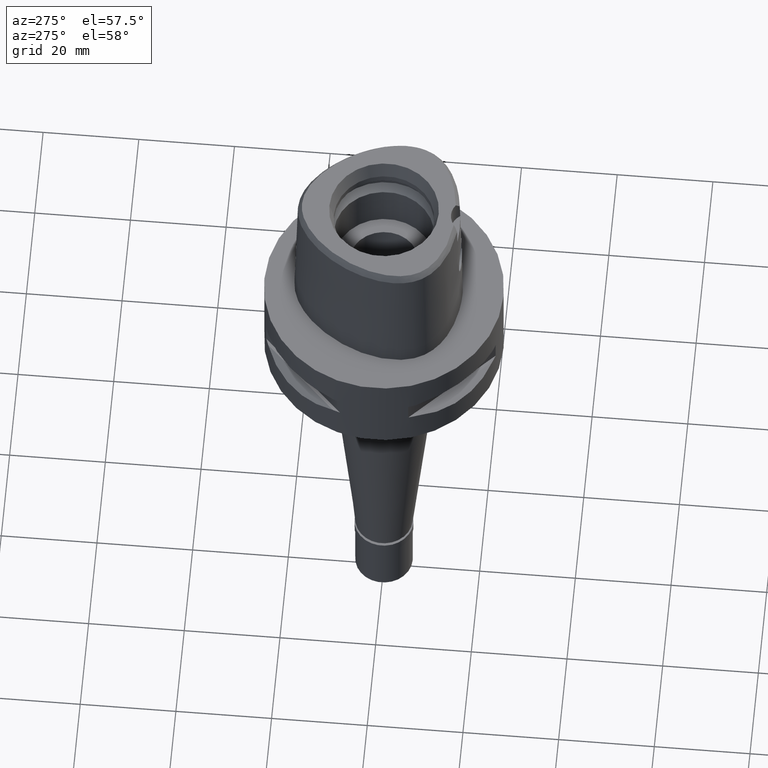
[diagram: clean part render]
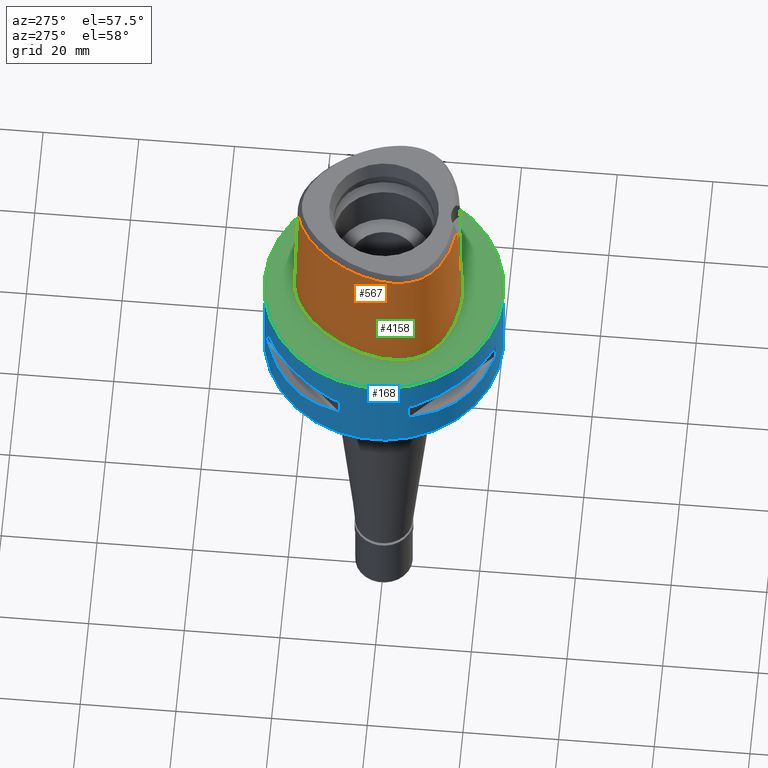
[diagram: same view with three faces highlighted in distinct colors, each labeled with its STEP entity id]
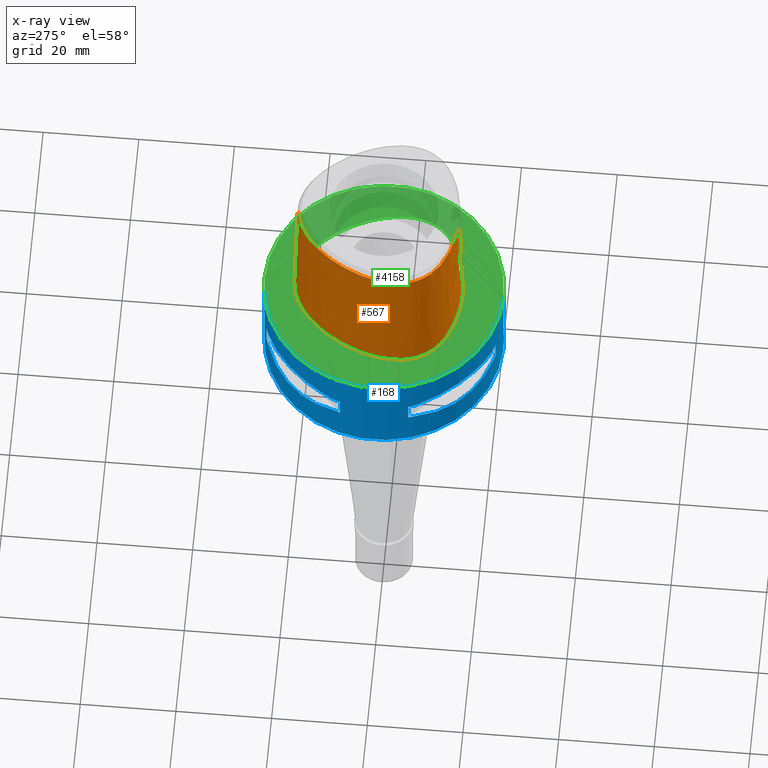
[diagram: x-ray of the same camera — body ghosted, the three highlighted faces saturated]
A machine part, auxiliary view with three faces highlighted in distinct colors.
The next image is the same camera in x-ray (body ghosted, the three faces saturated) — at least one of them is partly hidden behind the body in this view.
Their STEP definitions:

[orange] entity #567 — the highlighted face is a freeform B-spline surface patch.
#11 = CARTESIAN_POINT ( 'NONE',  ( -1.331640452049530854, -16.00477934147692238, 16.74576209651886671 ) ) ;
#27 = CARTESIAN_POINT ( 'NONE',  ( -0.4636176472083000100, 18.23430326495000031, 19.20396005423999952 ) ) ;
#39 = CARTESIAN_POINT ( 'NONE',  ( -1.671121799403547437, -15.99125384014990203, 16.55147925631862549 ) ) ;
#60 = CARTESIAN_POINT ( 'NONE',  ( -1.175386497654005380, -16.15078445366073012, 11.18557374675340377 ) ) ;
#69 = FACE_OUTER_BOUND ( 'NONE', #4678, .T. ) ;
#95 = CARTESIAN_POINT ( 'NONE',  ( -16.70311419885999982, -7.028822883438999192, 19.20396005423999952 ) ) ;
#109 = CARTESIAN_POINT ( 'NONE',  ( 2.029620734289000178E-07, -15.83752876601000281, 24.70000006102999990 ) ) ;
#121 = CARTESIAN_POINT ( 'NONE',  ( -16.84071412310999705, -5.352498121451000124, 29.09114740889999950 ) ) ;
#125 = CARTESIAN_POINT ( 'NONE',  ( -1.309813752746000093, -16.25411918805000155, 9.316772699582999806 ) ) ;
#135 = CARTESIAN_POINT ( 'NONE',  ( -0.3804472264592126951, -16.18126839358999902, 10.95000000000000284 ) ) ;
#179 = CARTESIAN_POINT ( 'NONE',  ( 1.079551361801000198, -16.20136645787000162, 9.316772699582999806 ) ) ;
#183 = ORIENTED_EDGE ( 'NONE', *, *, #2732, .T. ) ;
#193 = CARTESIAN_POINT ( 'NONE',  ( -16.99625270562795620, -3.273868231552286012, 28.52071192347007411 ) ) ;
#265 = CARTESIAN_POINT ( 'NONE',  ( -16.51672824315706478, 3.703437498322585508, 1.965274597790292455E-07 ) ) ;
#302 = CARTESIAN_POINT ( 'NONE',  ( -2.977125115125026866, -15.96287852150475217, 13.32982323603689068 ) ) ;
#308 = CARTESIAN_POINT ( 'NONE',  ( -1.725922884449000080E-11, -16.45500000000000185, 1.585398479164999957E-13 ) ) ;
#331 = CARTESIAN_POINT ( 'NONE',  ( -1.154649350538830888, -16.01059875151096179, 16.82300001247881127 ) ) ;
#341 = CARTESIAN_POINT ( 'NONE',  ( -0.4893119563089999291, 18.72969240675999814, -0.5704146550765000212 ) ) ;
#357 = CARTESIAN_POINT ( 'NONE',  ( -2.277845221347447158, -16.06297226044954840, 11.97064251377994992 ) ) ;
#366 = CARTESIAN_POINT ( 'NONE',  ( -4.416345281195999561, 17.06979575387999759, 29.09114740889999950 ) ) ;
#380 = CARTESIAN_POINT ( 'NONE',  ( -3.050024389103593414, -15.93682728871415755, 14.04426652284891475 ) ) ;
#392 = CARTESIAN_POINT ( 'NONE',  ( -11.47659488422999985, 12.46143684780999905, -0.5704146550765000212 ) ) ;
#411 = CARTESIAN_POINT ( 'NONE',  ( -2.897875851390828483, -15.92997726602827413, 14.97345579577180175 ) ) ;
#450 = VERTEX_POINT ( 'NONE', #990 ) ;
#456 = CARTESIAN_POINT ( 'NONE',  ( -2.167461438334128854, -16.07478142648957586, 11.85411610868569987 ) ) ;
#464 = CARTESIAN_POINT ( 'NONE',  ( -17.57791639611999912, -5.458025465756000116, -0.5704146550765000212 ) ) ;
#490 = CARTESIAN_POINT ( 'NONE',  ( -15.78948633191000184, -9.116064183389999798, 19.20396005423999952 ) ) ;
#497 = CARTESIAN_POINT ( 'NONE',  ( -4.922186786399000091, -15.43572512717999956, 29.09114740889999950 ) ) ;
#518 = CARTESIAN_POINT ( 'NONE',  ( -16.46533708415999797, -6.958244303006000386, 29.09114740889999950 ) ) ;
#522 = CARTESIAN_POINT ( 'NONE',  ( -14.61870768856000069, -11.12154150872000002, 9.316772699582999806 ) ) ;
#533 = CARTESIAN_POINT ( 'NONE',  ( -1.572520811670069962, -16.12649376598031736, 11.38472095029027997 ) ) ;
#544 = CARTESIAN_POINT ( 'NONE',  ( -13.20908636751000031, -12.10346125521000005, 19.20396005423999952 ) ) ;
#567 = ADVANCED_FACE ( 'NONE', ( #69 ), #2036, .T. ) ;
#569 = CARTESIAN_POINT ( 'NONE',  ( -4.965998105490999848, -15.68039697937999932, 19.20396005423999952 ) ) ;
#585 = CARTESIAN_POINT ( 'NONE',  ( -3.738627773282510613, -15.49270868800018874, 28.52071192347007411 ) ) ;
#591 = CARTESIAN_POINT ( 'NONE',  ( -1.683697722236912719, -16.45499999508711042, 1.965274597790292455E-07 ) ) ;
#599 = VERTEX_POINT ( 'NONE', #3544 ) ;
#607 = CARTESIAN_POINT ( 'NONE',  ( -7.967839661165066367, 15.83070312110102051, 1.965274597790292455E-07 ) ) ;
#618 = B_SPLINE_CURVE_WITH_KNOTS ( 'NONE', 3,
 ( #4267, #585, #1752, #1396, #4671, #3537, #1353, #4690, #3975, #2847, #921, #1303, #193, #4624, #985, #627, #3243, #1373, #2863, #2104, #4646, #2420 ),
 .UNSPECIFIED., .F., .F.,
 ( 4, 1, 1, 1, 1, 1, 1, 1, 1, 1, 1, 1, 1, 1, 1, 1, 1, 1, 1, 4 ),
 ( 0.0000000000000000000, 0.03108635432772371976, 0.1191694130251456790, 0.1632109423736981257, 0.2072524717224620283, 0.2512940010711202099, 0.2733147657454492174, 0.2953355304197783360, 0.3173562950941073990, 0.3393770597684365176, 0.3834185891170945881, 0.4274601184657527697, 0.4715016478144109513, 0.5595847065117273145, 0.6476677652091493709, 0.7357508239064656230, 0.8238338826037818752, 0.9119169413011086744, 0.9559584706497669115, 1.000000000000000000 ),
 .UNSPECIFIED. ) ;
#627 = CARTESIAN_POINT ( 'NONE',  ( -13.75951393052907079, 7.944084103042399647, 28.52071192347007411 ) ) ;
#654 = CARTESIAN_POINT ( 'NONE',  ( -0.1860095693367813385, -16.02877864023999877, 17.05000000000000782 ) ) ;
#674 = CARTESIAN_POINT ( 'NONE',  ( -3.040936525959815562, -15.93294854341565170, 14.23999838212085578 ) ) ;
#678 = CARTESIAN_POINT ( 'NONE',  ( -17.49754711821130826, -0.2285937508625711656, 1.965274597790292455E-07 ) ) ;
#695 = CARTESIAN_POINT ( 'NONE',  ( -2.139722381400349427, -15.96867257770618131, 16.17353267031697683 ) ) ;
#723 = CARTESIAN_POINT ( 'NONE',  ( -2.552453281219366321, -16.03022206925579596, 12.33036638903624116 ) ) ;
#732 = CARTESIAN_POINT ( 'NONE',  ( -4.628819269853000407, 17.52182797019000304, 9.316772699582999806 ) ) ;
#745 = CARTESIAN_POINT ( 'NONE',  ( -2.421847348364710495, -16.04659734725429487, 12.14335169878312648 ) ) ;
#754 = CARTESIAN_POINT ( 'NONE',  ( -4.735056264181000785, 17.74784407835000266, -0.5704146550765000212 ) ) ;
#765 = CARTESIAN_POINT ( 'NONE',  ( -2.319868985710076270, -15.95889227881296790, 15.99336665118495127 ) ) ;
#776 = CARTESIAN_POINT ( 'NONE',  ( -11.09665501215999939, 12.14079279054000082, 19.20396005423999952 ) ) ;
#825 = CARTESIAN_POINT ( 'NONE',  ( -13.96223226569999909, 8.061115411532000508, 19.20396005423999952 ) ) ;
#847 = CARTESIAN_POINT ( 'NONE',  ( -16.29641057802000148, 3.623925459321000186, 9.316772699582999806 ) ) ;
#849 = CARTESIAN_POINT ( 'NONE',  ( -3.235121119988999983, -15.64755630481999837, 24.69999999999999929 ) ) ;
#854 = CARTESIAN_POINT ( 'NONE',  ( -11.69401646368999970, -13.71637917712000032, -0.5704146550765000212 ) ) ;
#866 = CARTESIAN_POINT ( 'NONE',  ( -1.185240961645209978, -16.15026635704130342, 11.18970954941141649 ) ) ;
#878 = CARTESIAN_POINT ( 'NONE',  ( -17.22987933957999829, -3.272349403199000140, 19.20396005423999952 ) ) ;
#883 = CARTESIAN_POINT ( 'NONE',  ( 0.7138086215525000222, -15.96808633197999860, 19.20396005423999952 ) ) ;
#902 = CARTESIAN_POINT ( 'NONE',  ( -3.235121119988999983, -15.64755630481999837, 24.69999999999999929 ) ) ;
#906 = CARTESIAN_POINT ( 'NONE',  ( -15.25987608570000020, -9.930205369441999608, 19.20396005423999952 ) ) ;
#921 = CARTESIAN_POINT ( 'NONE',  ( -16.47905549557295046, -6.962316292879972224, 28.52071192347007411 ) ) ;
#954 = CARTESIAN_POINT ( 'NONE',  ( -13.36241663977999927, -12.29868533358999905, 9.316772699582999806 ) ) ;
#985 = CARTESIAN_POINT ( 'NONE',  ( -15.84228689412918811, 3.460033471612470990, 28.52071192347007411 ) ) ;
#990 = CARTESIAN_POINT ( 'NONE',  ( -3.096458028917999926E-11, 17.98202997909999823, 28.52071728569000086 ) ) ;
#1036 = CARTESIAN_POINT ( 'NONE',  ( -3.027041479269583224, -15.93083733889996267, 14.38613028388113690 ) ) ;
#1058 = CARTESIAN_POINT ( 'NONE',  ( -2.676760126906830184, -16.01335860444134340, 12.53714519674197270 ) ) ;
#1066 = CARTESIAN_POINT ( 'NONE',  ( 0.3639062181122000306, 18.20947643346000078, 19.20396005423999952 ) ) ;
#1084 = CARTESIAN_POINT ( 'NONE',  ( -2.804416461971865449, -15.93383585885214515, 15.19914549895715439 ) ) ;
#1109 = CARTESIAN_POINT ( 'NONE',  ( -2.567601606267789549, -16.02824055684114768, 12.35375696230524056 ) ) ;
#1121 = CARTESIAN_POINT ( 'NONE',  ( 0.5606135758362000843, 18.44514043134000048, 9.316772699582999806 ) ) ;
#1132 = CARTESIAN_POINT ( 'NONE',  ( -2.192347023520559546, -16.07215629485222408, 11.87955887064944527 ) ) ;
#1133 = CARTESIAN_POINT ( 'NONE',  ( -3.235121119988999983, -15.64755630481999837, 24.69999999999999929 ) ) ;
#1153 = CARTESIAN_POINT ( 'NONE',  ( -0.7803301227032979348, -16.17127761896326632, 11.02218832499753987 ) ) ;
#1190 = CARTESIAN_POINT ( 'NONE',  ( -14.17736240849000140, 8.185312179851999659, 9.316772699582999806 ) ) ;
#1212 = CARTESIAN_POINT ( 'NONE',  ( -17.47781019932000035, -3.270737581749999734, 9.316772699582999806 ) ) ;
#1216 = CARTESIAN_POINT ( 'NONE',  ( -15.05961628217000126, -9.784614167324001244, 29.09114740889999950 ) ) ;
#1231 = EDGE_CURVE ( 'NONE', #2590, #599, #4085, .T. ) ;
#1235 = CARTESIAN_POINT ( 'NONE',  ( -16.22974815981000063, -8.250337668185000695, 19.20396005423999952 ) ) ;
#1237 = CARTESIAN_POINT ( 'NONE',  ( -1.084489118009110742, -15.83754148632603531, 24.70000016923103914 ) ) ;
#1240 = CARTESIAN_POINT ( 'NONE',  ( -13.51574691205000001, -12.49390941197999894, -0.5704146550765000212 ) ) ;
#1270 = CARTESIAN_POINT ( 'NONE',  ( -5.053620743674000160, -16.16974068377999885, -0.5704146550765000212 ) ) ;
#1290 = CARTESIAN_POINT ( 'NONE',  ( 0.7074880720687999336, -15.72098116853000072, 29.09114740889999950 ) ) ;
#1303 = CARTESIAN_POINT ( 'NONE',  ( -16.85489160761173011, -5.354527567565297907, 28.52071192347007411 ) ) ;
#1310 = CARTESIAN_POINT ( 'NONE',  ( -8.697311552510999633, -14.35163119816000155, 29.09114740889999950 ) ) ;
#1335 = CARTESIAN_POINT ( 'NONE',  ( -4.728927204704250542, 17.73480468300209623, 1.965274597790292455E-07 ) ) ;
#1353 = CARTESIAN_POINT ( 'NONE',  ( -14.26907056455270428, -10.79012254419414241, 28.52071192347007411 ) ) ;
#1373 = CARTESIAN_POINT ( 'NONE',  ( -7.523733151594838908, 15.26501052509955159, 28.52071192347007411 ) ) ;
#1396 = CARTESIAN_POINT ( 'NONE',  ( -8.702202515498015600, -14.36510996956133823, 28.52071192347007411 ) ) ;
#1416 = DIRECTION ( 'NONE',  ( -1.380764677078966744E-12, -0.02499051295371941192, -0.9996876883618752707 ) ) ;
#1423 = CARTESIAN_POINT ( 'NONE',  ( -2.823487070364800289, -15.99101270351574833, 12.84654193248231913 ) ) ;
#1445 = CARTESIAN_POINT ( 'NONE',  ( -1.578081282396912810, -15.99520688260084178, 16.61014732819711170 ) ) ;
#1460 = ORIENTED_EDGE ( 'NONE', *, *, #1231, .T. ) ;
#1468 = CARTESIAN_POINT ( 'NONE',  ( -2.852964108053157144, -15.98613240798118795, 12.92095709856079466 ) ) ;
#1497 = CARTESIAN_POINT ( 'NONE',  ( -2.543826128446400325, -16.03134158490990657, 12.31726274100357976 ) ) ;
#1507 = CARTESIAN_POINT ( 'NONE',  ( -1.992618749817000046, 18.32080817586000165, 9.316772699582999806 ) ) ;
#1520 = CARTESIAN_POINT ( 'NONE',  ( -2.727932080415008453, -15.93733995233601775, 15.36492654817674719 ) ) ;
#1539 = CARTESIAN_POINT ( 'NONE',  ( 6.780366354176571212E-08, -15.90128720080208424, 22.15000025259031347 ) ) ;
#1553 = CARTESIAN_POINT ( 'NONE',  ( 0.3738602563478000129, 18.45648977876999908, 9.316772699582999806 ) ) ;
#1584 = CARTESIAN_POINT ( 'NONE',  ( -16.00353257958999720, -8.149703194130998085, 29.09114740889999950 ) ) ;
#1600 = CARTESIAN_POINT ( 'NONE',  ( -2.174903967719671982, -16.07399873101338628, 11.86167149722542646 ) ) ;
#1608 = CARTESIAN_POINT ( 'NONE',  ( -15.57503092436000003, -8.992248295753999088, 29.09114740889999950 ) ) ;
#1617 = VERTEX_POINT ( 'NONE', #3432 ) ;
#1623 = CARTESIAN_POINT ( 'NONE',  ( -1.365876440463372976, -16.14000093518805201, 11.27254294489530828 ) ) ;
#1663 = CARTESIAN_POINT ( 'NONE',  ( 2.029620734289000178E-07, -15.83752876601000281, 24.70000006102999990 ) ) ;
#1678 = B_SPLINE_CURVE_WITH_KNOTS ( 'NONE', 3,
 ( #109, #1539, #3449, #3081 ),
 .UNSPECIFIED., .F., .F.,
 ( 4, 4 ),
 ( 0.0000000000000000000, 1.000000000000000000 ),
 .UNSPECIFIED. ) ;
#1682 = CARTESIAN_POINT ( 'NONE',  ( -0.6729281198919370155, -16.02259025627639133, 16.97651237912929290 ) ) ;
#1688 = CARTESIAN_POINT ( 'NONE',  ( -11.32630897513999990, -13.06981821722000170, 29.09114740889999950 ) ) ;
#1694 = DIRECTION ( 'NONE',  ( 3.623371371864889881E-12, 0.02499051285796925065, -0.9996876883642689116 ) ) ;
#1702 = CARTESIAN_POINT ( 'NONE',  ( -1.080687980591294783, -16.01283629952124699, 16.85233897237008449 ) ) ;
#1724 = CARTESIAN_POINT ( 'NONE',  ( -1.142332392137255681, -16.01097948216497358, 16.82800652386608320 ) ) ;
#1752 = CARTESIAN_POINT ( 'NONE',  ( -5.902447850708533394, -15.16907854011829571, 28.52071192347007411 ) ) ;
#1778 = CARTESIAN_POINT ( 'NONE',  ( -17.71143735068534042, -3.269218750032018672, 1.965274597790292455E-07 ) ) ;
#1796 = CARTESIAN_POINT ( 'NONE',  ( -2.835998777456616882, -15.98895818849823947, 12.87753709204701202 ) ) ;
#1824 = CARTESIAN_POINT ( 'NONE',  ( -1.684236301196557317, -15.99068050411806396, 16.54283389550571215 ) ) ;
#1826 = CARTESIAN_POINT ( 'NONE',  ( -3.191384176940533557, -15.58827403572775339, 27.24714128231333277 ) ) ;
#1832 = CARTESIAN_POINT ( 'NONE',  ( -0.4507704926580000104, 17.98660869404999829, 29.09114740889999950 ) ) ;
#1845 = CARTESIAN_POINT ( 'NONE',  ( -3.033174470074064377, -15.94941370605746478, 13.62317640951239106 ) ) ;
#1846 = VERTEX_POINT ( 'NONE', #3171 ) ;
#1855 = CARTESIAN_POINT ( 'NONE',  ( -7.822764764142999816, 15.64591007407000234, 9.316772699582999806 ) ) ;
#1871 = CARTESIAN_POINT ( 'NONE',  ( -2.326795673542106702, -16.05749942887533166, 12.02743345691865073 ) ) ;
#1902 = CARTESIAN_POINT ( 'NONE',  ( -3.049900212867925120, -15.94261167837668403, 13.81468546117938345 ) ) ;
#1917 = ORIENTED_EDGE ( 'NONE', *, *, #3962, .T. ) ;
#1950 = CARTESIAN_POINT ( 'NONE',  ( -1.994661405400186105, -16.09284332350692281, 11.68121651189077603 ) ) ;
#1959 = CARTESIAN_POINT ( 'NONE',  ( -17.17866842827000085, -7.169980044304000266, -0.5704146550765000212 ) ) ;
#1983 = CARTESIAN_POINT ( 'NONE',  ( 7.240885495549999984E-11, 18.69499999997999851, 1.573926174576999759E-13 ) ) ;
#1986 = CARTESIAN_POINT ( 'NONE',  ( -16.94089131356999900, -7.099401463870999685, 9.316772699582999806 ) ) ;
#1989 = CARTESIAN_POINT ( 'NONE',  ( 0.7264497205198000573, -16.46229665889000060, -0.5704146550765000212 ) ) ;
#1996 = CARTESIAN_POINT ( 'NONE',  ( -2.135132199067000115E-12, -16.18126839358999902, 10.94999999999999929 ) ) ;
#2012 = CARTESIAN_POINT ( 'NONE',  ( -14.43869630075000110, -10.95090977753999972, 19.20396005423999952 ) ) ;
#2018 = CARTESIAN_POINT ( 'NONE',  ( -3.096458028917999926E-11, 17.98202997909999823, 28.52071728569000086 ) ) ;
#2024 = CARTESIAN_POINT ( 'NONE',  ( -1.304824586229321737, -16.14367980509709710, 11.24258093305639683 ) ) ;
#2036 = B_SPLINE_SURFACE_WITH_KNOTS ( 'NONE', 3, 3, ( 
 ( #2556, #1121, #2616, #4477 ),
 ( #4406, #1553, #1066, #3675 ),
 ( #341, #3697, #27, #1832 ),
 ( #2588, #1507, #4054, #4078 ),
 ( #754, #732, #2250, #366 ),
 ( #2636, #1855, #3343, #3719 ),
 ( #392, #3002, #776, #2272 ),
 ( #4501, #1190, #825, #4550 ),
 ( #3436, #847, #3847, #2375 ),
 ( #4197, #2687, #2321, #4154 ),
 ( #3072, #1212, #878, #3793 ),
 ( #464, #2708, #3463, #121 ),
 ( #1959, #1986, #95, #518 ),
 ( #3817, #4525, #1235, #1584 ),
 ( #4176, #2343, #490, #1608 ),
 ( #3095, #2730, #906, #1216 ),
 ( #2350, #522, #2012, #2805 ),
 ( #1240, #954, #544, #4586 ),
 ( #854, #3824, #2735, #1688 ),
 ( #3179, #2785, #4206, #1310 ),
 ( #1270, #3896, #569, #497 ),
 ( #2426, #125, #3127, #4609 ),
 ( #1989, #2069, #883, #1290 ),
 ( #4179, #179, #2712, #2039 ) ),
 .UNSPECIFIED., .F., .F., .F.,
 ( 4, 1, 1, 1, 1, 1, 1, 1, 1, 1, 1, 1, 1, 1, 1, 1, 1, 1, 1, 1, 1, 4 ),
 ( 4, 4 ),
 ( -0.01173812893898000011, 0.0000000000000000000, 0.04166666666808999803, 0.08333333333469000737, 0.1666666666679000042, 0.2500000000011000090, 0.3333333333342999860, 0.4166666666675999942, 0.5000000000008000267, 0.5416666666674000430, 0.5833333333340000593, 0.6250000000005999645, 0.6458333333339000282, 0.6666666666671999808, 0.6875000000005000445, 0.7083333333337999971, 0.7500000000004000134, 0.7916666666671000607, 0.8333333333336000459, 0.9166666666668999985, 1.000000000000000000, 1.017968513185000035 ),
 ( 2.958181474082999845E-09, 0.9999998491328000449 ),
 .UNSPECIFIED. ) ;
#2039 = CARTESIAN_POINT ( 'NONE',  ( 1.060560760936000158, -15.70738093740000174, 29.09114740889999950 ) ) ;
#2069 = CARTESIAN_POINT ( 'NONE',  ( 0.7201291710360999687, -16.21519149543999916, 9.316772699582999806 ) ) ;
#2104 = CARTESIAN_POINT ( 'NONE',  ( -1.893775706184014140, 17.84807082154122426, 28.52071192347007411 ) ) ;
#2107 = CARTESIAN_POINT ( 'NONE',  ( -16.20602471537863210, -9.356552731914222321, 1.965274597790292455E-07 ) ) ;
#2167 = CARTESIAN_POINT ( 'NONE',  ( -1.858121229639375649, -15.98284882596934153, 16.42071856142375097 ) ) ;
#2174 = CARTESIAN_POINT ( 'NONE',  ( -14.78833380041826118, -11.28232909817104890, 1.965274597790292455E-07 ) ) ;
#2190 = CARTESIAN_POINT ( 'NONE',  ( -2.094858927816530603, -15.97106233740275982, 16.21701581232835565 ) ) ;
#2191 = CARTESIAN_POINT ( 'NONE',  ( -3.168920966622999824, -15.55911077538999976, 28.52071192346999950 ) ) ;
#2218 = CARTESIAN_POINT ( 'NONE',  ( -2.481413756884710775, -16.03938740154347897, 12.22374741088107264 ) ) ;
#2240 = CARTESIAN_POINT ( 'NONE',  ( -1.509334869501810505, -15.99801316582186494, 16.65089544997347559 ) ) ;
#2250 = CARTESIAN_POINT ( 'NONE',  ( -4.522582275523999051, 17.29581186202999987, 19.20396005423999952 ) ) ;
#2264 = CARTESIAN_POINT ( 'NONE',  ( -2.789432624432891306, -15.93448362603993829, 15.23385107219267631 ) ) ;
#2272 = CARTESIAN_POINT ( 'NONE',  ( -10.90668507612000049, 11.98047076191000038, 29.09114740889999950 ) ) ;
#2289 = EDGE_CURVE ( 'NONE', #1617, #1846, #1678, .T. ) ;
#2321 = CARTESIAN_POINT ( 'NONE',  ( -17.02224579216000322, -0.3128848804332000078, 19.20396005423999952 ) ) ;
#2328 = ORIENTED_EDGE ( 'NONE', *, *, #2289, .F. ) ;
#2343 = CARTESIAN_POINT ( 'NONE',  ( -16.00394173944999920, -9.239880071026000508, 9.316772699582999806 ) ) ;
#2347 = ORIENTED_EDGE ( 'NONE', *, *, #2545, .T. ) ;
#2350 = CARTESIAN_POINT ( 'NONE',  ( -14.79871907637000028, -11.29217323990000033, -0.5704146550765000212 ) ) ;
#2362 = VERTEX_POINT ( 'NONE', #1996 ) ;
#2364 = CARTESIAN_POINT ( 'NONE',  ( -2.135132199067000115E-12, -16.18126839358999902, 10.94999999999999929 ) ) ;
#2375 = CARTESIAN_POINT ( 'NONE',  ( -15.82879756461999854, 3.455165209717000252, 29.09114740889999950 ) ) ;
#2420 = CARTESIAN_POINT ( 'NONE',  ( -3.096458028917999926E-11, 17.98202997909999823, 28.52071728569000086 ) ) ;
#2424 = CARTESIAN_POINT ( 'NONE',  ( -2.169052023958326192, -15.77399788493646859, 24.70000016923103914 ) ) ;
#2426 = CARTESIAN_POINT ( 'NONE',  ( -1.321318947014999967, -16.50155084510000236, -0.5704146550765000212 ) ) ;
#2444 = CARTESIAN_POINT ( 'NONE',  ( -0.7716804092975211304, -16.02065638628776512, 16.95256773581724019 ) ) ;
#2486 = CARTESIAN_POINT ( 'NONE',  ( -5.051093166701701165, -16.15562499513589145, 1.965274597790292455E-07 ) ) ;
#2527 = CARTESIAN_POINT ( 'NONE',  ( -2.814800487491233127, -15.93339868692382844, 15.17448999603404758 ) ) ;
#2545 = EDGE_CURVE ( 'NONE', #450, #2590, #3549, .T. ) ;
#2548 = CARTESIAN_POINT ( 'NONE',  ( -2.651693848301849066, -16.01689519106519555, 12.49206992023761131 ) ) ;
#2556 = CARTESIAN_POINT ( 'NONE',  ( 0.5756361490746999543, 18.69183959904000147, -0.5704146550765000212 ) ) ;
#2564 = B_SPLINE_CURVE_WITH_KNOTS ( 'NONE', 3,
 ( #1663, #1237, #2424, #849 ),
 .UNSPECIFIED., .F., .F.,
 ( 4, 4 ),
 ( 0.0000000000000000000, 1.000000000000000000 ),
 .UNSPECIFIED. ) ;
#2576 = CARTESIAN_POINT ( 'NONE',  ( -2.589913444510930418, -16.02530027108457134, 12.38873572167998383 ) ) ;
#2588 = CARTESIAN_POINT ( 'NONE',  ( -2.043508292840999996, 18.56419796882000028, -0.5704146550765000212 ) ) ;
#2590 = VERTEX_POINT ( 'NONE', #1983 ) ;
#2605 = CARTESIAN_POINT ( 'NONE',  ( -2.757857542929186501, -15.93590525390312429, 15.30389640927173289 ) ) ;
#2616 = CARTESIAN_POINT ( 'NONE',  ( 0.5455910025978000233, 18.19844126364000303, 19.20396005423999952 ) ) ;
#2628 = CARTESIAN_POINT ( 'NONE',  ( -1.612726137265491744, -15.99376531708313465, 16.58900383235663512 ) ) ;
#2636 = CARTESIAN_POINT ( 'NONE',  ( -7.976721800964999609, 15.84201698526000257, -0.5704146550765000212 ) ) ;
#2687 = CARTESIAN_POINT ( 'NONE',  ( -17.26695538826999865, -0.2694874667448000083, 9.316772699582999806 ) ) ;
#2708 = CARTESIAN_POINT ( 'NONE',  ( -17.33218230511999991, -5.422849684321000119, 9.316772699582999806 ) ) ;
#2712 = CARTESIAN_POINT ( 'NONE',  ( 1.070056061369000000, -15.95437369763000035, 19.20396005423999952 ) ) ;
#2730 = CARTESIAN_POINT ( 'NONE',  ( -15.46013588923000093, -10.07579657155999975, 9.316772699582999806 ) ) ;
#2732 = EDGE_CURVE ( 'NONE', #3678, #450, #618, .T. ) ;
#2735 = CARTESIAN_POINT ( 'NONE',  ( -11.44887813798999865, -13.28533853719000035, 19.20396005423999952 ) ) ;
#2763 = EDGE_CURVE ( 'NONE', #1846, #2362, #4540, .T. ) ;
#2785 = CARTESIAN_POINT ( 'NONE',  ( -8.866858744551000981, -14.81887821052000120, 9.316772699582999806 ) ) ;
#2799 = CARTESIAN_POINT ( 'NONE',  ( -0.3789226266317114455, -16.02723154424910135, 17.03294418570989777 ) ) ;
#2805 = CARTESIAN_POINT ( 'NONE',  ( -14.25868491292999884, -10.78027804637000031, 29.09114740889999950 ) ) ;
#2825 = CARTESIAN_POINT ( 'NONE',  ( -0.9200171645878182369, -16.01717542030823438, 16.90838961266101137 ) ) ;
#2831 = CARTESIAN_POINT ( 'NONE',  ( 7.240885495549999984E-11, 18.69499999997999851, 1.573926174576999759E-13 ) ) ;
#2847 = CARTESIAN_POINT ( 'NONE',  ( -16.01658395504044563, -8.155509241189559333, 28.52071192347007411 ) ) ;
#2863 = CARTESIAN_POINT ( 'NONE',  ( -4.422474562381469632, 17.08283562090617025, 28.52071192347007411 ) ) ;
#2894 = VECTOR ( 'NONE', #1694, 1000.000000000000227 ) ;
#2908 = LINE ( 'NONE', #4320, #3600 ) ;
#2915 = CARTESIAN_POINT ( 'NONE',  ( -3.044373801969907589, -15.93377869067406216, 14.19140803544976315 ) ) ;
#2937 = CARTESIAN_POINT ( 'NONE',  ( -2.611019405660823800, -16.02245593392424183, 12.42336243514683503 ) ) ;
#2961 = CARTESIAN_POINT ( 'NONE',  ( -2.746377481630918105, -16.00326057041633376, 12.66963668945508914 ) ) ;
#2990 = CARTESIAN_POINT ( 'NONE',  ( -2.147290074987659558, -15.96826519308856795, 16.16606823402967663 ) ) ;
#3002 = CARTESIAN_POINT ( 'NONE',  ( -11.28662494820000006, 12.30111481918000038, 9.316772699582999806 ) ) ;
#3055 = ORIENTED_EDGE ( 'NONE', *, *, #4141, .F. ) ;
#3064 = CARTESIAN_POINT ( 'NONE',  ( -1.489022098702215136, -16.13222843886630997, 11.33656707578555967 ) ) ;
#3072 = CARTESIAN_POINT ( 'NONE',  ( -17.72574105905999886, -3.269125760301000216, -0.5704146550765000212 ) ) ;
#3081 = CARTESIAN_POINT ( 'NONE',  ( 0.0000000000000000000, -16.02877864023999877, 17.05000000000000071 ) ) ;
#3086 = CARTESIAN_POINT ( 'NONE',  ( -1.171575576431315602, -16.15098385800271075, 11.18398276020009341 ) ) ;
#3095 = CARTESIAN_POINT ( 'NONE',  ( -15.66039569275999987, -10.22138777368000007, -0.5704146550765000212 ) ) ;
#3118 = EDGE_CURVE ( 'NONE', #2362, #599, #2908, .T. ) ;
#3127 = CARTESIAN_POINT ( 'NONE',  ( -1.298308558476999774, -16.00668753100000075, 19.20396005423999952 ) ) ;
#3171 = CARTESIAN_POINT ( 'NONE',  ( 0.0000000000000000000, -16.02877864023999877, 17.05000000000000071 ) ) ;
#3179 = CARTESIAN_POINT ( 'NONE',  ( -8.951632340570998991, -15.05250171670999926, -0.5704146550765000212 ) ) ;
#3243 = CARTESIAN_POINT ( 'NONE',  ( -10.91764528035148984, 11.98972044748247612, 28.52071192347007411 ) ) ;
#3247 = CARTESIAN_POINT ( 'NONE',  ( -2.040572356655009134, 18.55015624515753814, 1.965274597790292455E-07 ) ) ;
#3269 = CARTESIAN_POINT ( 'NONE',  ( -11.46563507645222835, 12.45218749681769133, 1.965274597790292455E-07 ) ) ;
#3286 = CARTESIAN_POINT ( 'NONE',  ( -1.161963448164193835, -16.01037049746986085, 16.81999471489868725 ) ) ;
#3287 = CARTESIAN_POINT ( 'NONE',  ( -3.213444811939455636, -15.61774738279276953, 25.97357064115666603 ) ) ;
#3314 = CARTESIAN_POINT ( 'NONE',  ( -2.615901618710520182, -15.94298692150341523, 15.57147967507502884 ) ) ;
#3333 = CARTESIAN_POINT ( 'NONE',  ( -1.246904710355533075, -16.00770134241809828, 16.78481881931011799 ) ) ;
#3343 = CARTESIAN_POINT ( 'NONE',  ( -7.668807727319999934, 15.44980316286999766, 19.20396005423999952 ) ) ;
#3344 = CARTESIAN_POINT ( 'NONE',  ( -3.168920966622999824, -15.55911077538999976, 28.52071192346999950 ) ) ;
#3357 = CARTESIAN_POINT ( 'NONE',  ( -2.909137552891452039, -15.97627371699491761, 13.08234413147179609 ) ) ;
#3381 = CARTESIAN_POINT ( 'NONE',  ( -2.453157249261960882, -15.95160785209419707, 15.82331514066506095 ) ) ;
#3432 = CARTESIAN_POINT ( 'NONE',  ( 2.029620734289000178E-07, -15.83752876601000281, 24.70000006102999990 ) ) ;
#3436 = CARTESIAN_POINT ( 'NONE',  ( -16.53021708473000118, 3.708305584123000376, -0.5704146550765000212 ) ) ;
#3449 = CARTESIAN_POINT ( 'NONE',  ( 6.795883178897245415E-08, -15.96503292052214817, 19.60000012629518196 ) ) ;
#3463 = CARTESIAN_POINT ( 'NONE',  ( -17.08644821410999981, -5.387673902885999233, 19.20396005423999952 ) ) ;
#3503 = CARTESIAN_POINT ( 'NONE',  ( -1.200046882093896539, -16.14948273154177016, 11.19596910876555640 ) ) ;
#3537 = CARTESIAN_POINT ( 'NONE',  ( -13.06460239553242175, -11.91950051571803471, 28.52071192347007411 ) ) ;
#3544 = CARTESIAN_POINT ( 'NONE',  ( -1.725922884449000080E-11, -16.45500000000000185, 1.585398479164999957E-13 ) ) ;
#3549 = LINE ( 'NONE', #2018, #2894 ) ;
#3557 = CARTESIAN_POINT ( 'NONE',  ( -0.9942354939427254790, -16.01528989706931938, 16.88423654529414364 ) ) ;
#3577 = CARTESIAN_POINT ( 'NONE',  ( 0.0000000000000000000, -16.02877864023999877, 17.05000000000000071 ) ) ;
#3581 = CARTESIAN_POINT ( 'NONE',  ( -15.64884223857577972, -10.21298827835608769, 1.965274597790292455E-07 ) ) ;
#3600 = VECTOR ( 'NONE', #1416, 1000.000000000000114 ) ;
#3606 = CARTESIAN_POINT ( 'NONE',  ( -14.38008119262156370, 8.302343747531034879, 1.965274597790292455E-07 ) ) ;
#3625 = CARTESIAN_POINT ( 'NONE',  ( -0.6801907855161170025, 18.69499999508673227, 1.965274597790292455E-07 ) ) ;
#3639 = CARTESIAN_POINT ( 'NONE',  ( -2.030787586191289851, -15.97439197203189032, 16.27657083949421235 ) ) ;
#3645 = CARTESIAN_POINT ( 'NONE',  ( -13.50690093175591144, -12.48264648050012049, 1.965274597790292455E-07 ) ) ;
#3662 = CARTESIAN_POINT ( 'NONE',  ( -3.048918288824147282, -15.93569181003059043, 14.09458409078209584 ) ) ;
#3675 = CARTESIAN_POINT ( 'NONE',  ( 0.3539521798767000238, 17.96246308814000159, 29.09114740889999950 ) ) ;
#3678 = VERTEX_POINT ( 'NONE', #3344 ) ;
#3688 = CARTESIAN_POINT ( 'NONE',  ( -2.663989615092872576, -15.94049756288771746, 15.48802251319579604 ) ) ;
#3697 = CARTESIAN_POINT ( 'NONE',  ( -0.4764648017587000406, 18.48199783585999967, 9.316772699582999806 ) ) ;
#3709 = CARTESIAN_POINT ( 'NONE',  ( -1.777739861706180147, -15.98655714082961765, 16.48034954023923149 ) ) ;
#3719 = CARTESIAN_POINT ( 'NONE',  ( -7.514850690498000141, 15.25369625168000098, 29.09114740889999950 ) ) ;
#3734 = CARTESIAN_POINT ( 'NONE',  ( -2.810669180509295817, -15.93357175435962070, 15.18434255724438131 ) ) ;
#3793 = CARTESIAN_POINT ( 'NONE',  ( -16.98194847983999978, -3.273961224647000012, 29.09114740889999950 ) ) ;
#3803 = ORIENTED_EDGE ( 'NONE', *, *, #3118, .F. ) ;
#3817 = CARTESIAN_POINT ( 'NONE',  ( -16.68217932025000039, -8.451606616292000496, -0.5704146550765000212 ) ) ;
#3824 = CARTESIAN_POINT ( 'NONE',  ( -11.57144730084000095, -13.50085885714999989, 9.316772699582999806 ) ) ;
#3847 = CARTESIAN_POINT ( 'NONE',  ( -16.06260407131999912, 3.539545334518999997, 19.20396005423999952 ) ) ;
#3863 = CARTESIAN_POINT ( 'NONE',  ( -1.824495776870222574, -16.10763072130786711, 11.54770719445516036 ) ) ;
#3896 = CARTESIAN_POINT ( 'NONE',  ( -5.009809424581999515, -15.92506883157999908, 9.316772699582999806 ) ) ;
#3943 = VERTEX_POINT ( 'NONE', #902 ) ;
#3956 = CARTESIAN_POINT ( 'NONE',  ( -17.16495051308023534, -7.165908201722285042, 1.965274597790292455E-07 ) ) ;
#3962 = EDGE_CURVE ( 'NONE', #1617, #3943, #2564, .T. ) ;
#3975 = CARTESIAN_POINT ( 'NONE',  ( -15.58740380353388311, -8.999391780896342397, 28.52071192347007411 ) ) ;
#3995 = CARTESIAN_POINT ( 'NONE',  ( -3.012997481775840480, -15.92993551890224602, 14.48403558616133679 ) ) ;
#4016 = CARTESIAN_POINT ( 'NONE',  ( -2.121841374836221483, -15.96962928976697071, 16.19099185722675216 ) ) ;
#4042 = CARTESIAN_POINT ( 'NONE',  ( -2.816407481552753556, -15.93333177460183592, 15.17063687595691235 ) ) ;
#4054 = CARTESIAN_POINT ( 'NONE',  ( -1.941729206793999962, 18.07741838291000036, 19.20396005423999952 ) ) ;
#4059 = B_SPLINE_CURVE_WITH_KNOTS ( 'NONE', 3,
 ( #2191, #1826, #3287, #1133 ),
 .UNSPECIFIED., .F., .F.,
 ( 4, 4 ),
 ( 0.0000000000000000000, 1.000000000000000000 ),
 .UNSPECIFIED. ) ;
#4068 = CARTESIAN_POINT ( 'NONE',  ( -1.974011923642381650, -15.97722169910644929, 16.32556985268820071 ) ) ;
#4078 = CARTESIAN_POINT ( 'NONE',  ( -1.890839663770000012, 17.83402858995000173, 29.09114740889999950 ) ) ;
#4085 = B_SPLINE_CURVE_WITH_KNOTS ( 'NONE', 3,
 ( #2831, #3625, #3247, #1335, #607, #3269, #3606, #265, #678, #1778, #4297, #3956, #4693, #2107, #3581, #2174, #3645, #4674, #4716, #2486, #591, #308 ),
 .UNSPECIFIED., .F., .F.,
 ( 4, 1, 1, 1, 1, 1, 1, 1, 1, 1, 1, 1, 1, 1, 1, 1, 1, 1, 1, 4 ),
 ( 0.0000000000000000000, 0.04166666666808999803, 0.08333333333469000737, 0.1666666666679000042, 0.2500000000011000090, 0.3333333333342999860, 0.4166666666675999942, 0.5000000000008000267, 0.5416666666674000430, 0.5833333333340000593, 0.6250000000005999645, 0.6458333333339000282, 0.6666666666671999808, 0.6875000000005000445, 0.7083333333337999971, 0.7500000000004000134, 0.7916666666671000607, 0.8333333333336000459, 0.9166666666668999985, 1.000000000000000000 ),
 .UNSPECIFIED. ) ;
#4091 = CARTESIAN_POINT ( 'NONE',  ( -2.884965141850715842, -15.98065922520866167, 13.00785839094773699 ) ) ;
#4141 = EDGE_CURVE ( 'NONE', #3678, #3943, #4059, .T. ) ;
#4154 = CARTESIAN_POINT ( 'NONE',  ( -16.77753619605000068, -0.3562822941216999828, 29.09114740889999950 ) ) ;
#4176 = CARTESIAN_POINT ( 'NONE',  ( -16.21839714700000101, -9.363695958662001217, -0.5704146550765000212 ) ) ;
#4179 = CARTESIAN_POINT ( 'NONE',  ( 1.089046662232999951, -16.44835921809999846, -0.5704146550765000212 ) ) ;
#4197 = CARTESIAN_POINT ( 'NONE',  ( -17.51166498438999852, -0.2260900530564000088, -0.5704146550765000212 ) ) ;
#4206 = CARTESIAN_POINT ( 'NONE',  ( -8.782085148530999419, -14.58525470434000049, 19.20396005423999952 ) ) ;
#4267 = CARTESIAN_POINT ( 'NONE',  ( -3.168920966622999824, -15.55911077538999976, 28.52071192346999950 ) ) ;
#4292 = CARTESIAN_POINT ( 'NONE',  ( -1.123850819195800321, -16.01154604563820172, 16.83544840132021392 ) ) ;
#4297 = CARTESIAN_POINT ( 'NONE',  ( -17.56373942444707481, -5.455996093050944573, 1.965274597790292455E-07 ) ) ;
#4320 = CARTESIAN_POINT ( 'NONE',  ( -2.135132199067000115E-12, -16.18126839358999902, 10.94999999999999929 ) ) ;
#4354 = CARTESIAN_POINT ( 'NONE',  ( -2.955918695230546511, -15.92874700794729215, 14.77770287553726902 ) ) ;
#4376 = CARTESIAN_POINT ( 'NONE',  ( -2.820449305716981048, -15.99150796465921509, 12.83914045378750934 ) ) ;
#4381 = ORIENTED_EDGE ( 'NONE', *, *, #2763, .F. ) ;
#4397 = CARTESIAN_POINT ( 'NONE',  ( -1.647720974731994303, -15.99226611570463774, 16.56665347355155049 ) ) ;
#4406 = CARTESIAN_POINT ( 'NONE',  ( 0.3838142945833000197, 18.70350312408999827, -0.5704146550765000212 ) ) ;
#4421 = CARTESIAN_POINT ( 'NONE',  ( -2.785351805567207517, -15.99721084886171774, 12.75429401937950580 ) ) ;
#4447 = CARTESIAN_POINT ( 'NONE',  ( -2.218346767532567210, -16.06939536445594996, 11.90655067610194706 ) ) ;
#4468 = CARTESIAN_POINT ( 'NONE',  ( -1.234760267190457395, -16.14760890805033355, 11.21096960606327819 ) ) ;
#4477 = CARTESIAN_POINT ( 'NONE',  ( 0.5305684293593001533, 17.95174209593000114, 29.09114740889999950 ) ) ;
#4501 = CARTESIAN_POINT ( 'NONE',  ( -14.39249255128999927, 8.309508948171998810, -0.5704146550765000212 ) ) ;
#4525 = CARTESIAN_POINT ( 'NONE',  ( -16.45596374003000051, -8.350972142237999662, 9.316772699582999806 ) ) ;
#4540 = B_SPLINE_CURVE_WITH_KNOTS ( 'NONE', 3,
 ( #3577, #654, #2799, #1682, #2444, #2825, #3557, #1702, #4292, #1724, #331, #3286, #3333, #11, #4762, #2240, #1445, #2628, #4397, #39, #1824, #3709, #2167, #4068, #3639, #2190, #4016, #695, #2990, #765, #3381, #3314, #3688, #1520, #2605, #2264, #1084, #3734, #2527, #4042, #411, #4354, #3995, #1036, #674, #2915, #3662, #380, #1902, #1845, #302, #4783, #3357, #4091, #1468, #1796, #4737, #1423, #4376, #4421, #2961, #1058, #2548, #2937, #2576, #1109, #723, #1497, #2218, #745, #1871, #357, #4447, #1132, #1600, #456, #1950, #3863, #533, #3064, #1623, #2024, #4468, #3503, #866, #60, #3086, #1153, #135, #2364 ),
 .UNSPECIFIED., .F., .F.,
 ( 4, 2, 2, 1, 1, 1, 2, 2, 2, 2, 1, 2, 2, 2, 1, 1, 2, 2, 2, 2, 1, 1, 1, 2, 2, 2, 2, 2, 2, 2, 2, 1, 1, 1, 2, 2, 2, 2, 1, 2, 2, 2, 1, 1, 2, 2, 2, 2, 1, 1, 1, 2, 2, 4 ),
 ( 0.0000000000000000000, 0.06250000000001690315, 0.09375000000002522982, 0.1093750000000293793, 0.1171875000000314887, 0.1210937500000325712, 0.1230468750000331124, 0.1250000000000336398, 0.1562500000000373312, 0.1718750000000392186, 0.1796875000000404121, 0.1835937500000410227, 0.1875000000000416334, 0.2187500000000447697, 0.2343750000000464073, 0.2421875000000467959, 0.2460937500000466016, 0.2500000000000464073, 0.3125000000000450195, 0.3437500000000443534, 0.3593750000000436873, 0.3671875000000434097, 0.3710937500000432987, 0.3730468750000434652, 0.3750000000000436873, 0.4375000000000501821, 0.4687500000000537348, 0.4843750000000552336, 0.5000000000000567324, 0.5625000000000615064, 0.5937500000000638378, 0.6093750000000650591, 0.6171875000000659472, 0.6210937500000665024, 0.6230468750000667244, 0.6250000000000668354, 0.6562500000000642819, 0.6718750000000629496, 0.6796875000000622835, 0.6835937500000618394, 0.6875000000000615064, 0.7187500000000566214, 0.7343750000000540679, 0.7421875000000526246, 0.7460937500000516254, 0.7500000000000507372, 0.8125000000000369704, 0.8437500000000300870, 0.8593750000000265343, 0.8671875000000247580, 0.8710937500000238698, 0.8730468750000235367, 0.8750000000000230926, 1.000000000000000000 ),
 .UNSPECIFIED. ) ;
#4550 = CARTESIAN_POINT ( 'NONE',  ( -13.74710212289999944, 7.936918643212000468, 29.09114740889999950 ) ) ;
#4586 = CARTESIAN_POINT ( 'NONE',  ( -13.05575609525000047, -11.90823717682000016, 29.09114740889999950 ) ) ;
#4609 = CARTESIAN_POINT ( 'NONE',  ( -1.286803364208000122, -15.75925587394999816, 29.09114740889999950 ) ) ;
#4624 = CARTESIAN_POINT ( 'NONE',  ( -16.79165457291889396, -0.3537785057483428530, 28.52071192347007411 ) ) ;
#4646 = CARTESIAN_POINT ( 'NONE',  ( -0.6295828121026508795, 17.98203011042153676, 28.52071192347007056 ) ) ;
#4671 = CARTESIAN_POINT ( 'NONE',  ( -11.33338053122577804, -13.08225253589244375, 28.52071192347007411 ) ) ;
#4674 = CARTESIAN_POINT ( 'NONE',  ( -11.68694516339696143, -13.70394530822246182, 1.965274597790292455E-07 ) ) ;
#4678 = EDGE_LOOP ( 'NONE', ( #3803, #4381, #2328, #1917, #3055, #183, #2347, #1460 ) ) ;
#4690 = CARTESIAN_POINT ( 'NONE',  ( -15.07117015428155682, -9.793013966485826671, 28.52071192347007411 ) ) ;
#4693 = CARTESIAN_POINT ( 'NONE',  ( -16.66912841689466873, -8.445800779250111745, 1.965274597790292455E-07 ) ) ;
#4716 = CARTESIAN_POINT ( 'NONE',  ( -8.946741554500185600, -15.03902343286300791, 1.965274597790292455E-07 ) ) ;
#4737 = CARTESIAN_POINT ( 'NONE',  ( -2.828519626696925471, -15.99018834924786958, 12.85893844538118458 ) ) ;
#4762 = CARTESIAN_POINT ( 'NONE',  ( -1.464230114822703710, -15.99978155755002085, 16.67600899043703677 ) ) ;
#4783 = CARTESIAN_POINT ( 'NONE',  ( -2.953287761230195319, -15.96791042230820423, 13.23104891045136000 ) ) ;

[blue] entity #168 — the highlighted cylindrical surface (partial cylindrical patch) has radius 25 mm, axis along (0, 0, -1).
#34 = VERTEX_POINT ( 'NONE', #3642 ) ;
#65 = LINE ( 'NONE', #89, #2890 ) ;
#89 = CARTESIAN_POINT ( 'NONE',  ( -23.95277699797999915, 7.159921374230999724, -12.05000000000000071 ) ) ;
#123 = CARTESIAN_POINT ( 'NONE',  ( -11.99631184310672616, 22.00754773658299257, -7.175632472890622005 ) ) ;
#142 = CARTESIAN_POINT ( 'NONE',  ( -23.45715880140000209, 8.646484890751999330, -12.05000000000000071 ) ) ;
#150 = EDGE_CURVE ( 'NONE', #1272, #929, #4658, .T. ) ;
#163 = CARTESIAN_POINT ( 'NONE',  ( -22.00754773658296770, -11.99631184310673682, -7.175632472890622005 ) ) ;
#168 = ADVANCED_FACE ( 'NONE', ( #970, #263, #1060 ), #2550, .T. ) ;
#176 = CARTESIAN_POINT ( 'NONE',  ( -22.00752022557068699, 11.99636231264038422, -7.175618606701941182 ) ) ;
#206 = DIRECTION ( 'NONE',  ( 0.0000000000000000000, 0.0000000000000000000, -1.000000000000000000 ) ) ;
#219 = CARTESIAN_POINT ( 'NONE',  ( -8.646484890756999775, 23.45715880140000209, -12.05000000000000071 ) ) ;
#259 = EDGE_CURVE ( 'NONE', #4654, #34, #2442, .T. ) ;
#263 = FACE_BOUND ( 'NONE', #682, .T. ) ;
#284 = CARTESIAN_POINT ( 'NONE',  ( 0.0000000000000000000, 1.286491462503999938E-14, -7.950000000000000178 ) ) ;
#299 = CARTESIAN_POINT ( 'NONE',  ( -21.41803043592453548, -12.89853354821786446, -12.95342092614003171 ) ) ;
#312 = DIRECTION ( 'NONE',  ( 0.0000000000000000000, 0.0000000000000000000, 1.000000000000000000 ) ) ;
#329 = CARTESIAN_POINT ( 'NONE',  ( -21.05082155772163333, -13.48572973711064193, -13.04323036965292637 ) ) ;
#352 = ORIENTED_EDGE ( 'NONE', *, *, #400, .T. ) ;
#378 = CARTESIAN_POINT ( 'NONE',  ( -23.45715880140000209, 8.646484890751999330, -7.949999999998000000 ) ) ;
#400 = EDGE_CURVE ( 'NONE', #3070, #2835, #2511, .T. ) ;
#427 = EDGE_CURVE ( 'NONE', #2421, #3911, #1487, .T. ) ;
#441 = CARTESIAN_POINT ( 'NONE',  ( -20.56020460721917331, 14.22535762329778386, -13.14488865845300047 ) ) ;
#484 = CARTESIAN_POINT ( 'NONE',  ( -12.20403021318853476, 21.82791133048002763, -12.83722430138890225 ) ) ;
#494 = CARTESIAN_POINT ( 'NONE',  ( -22.82437128822294525, 10.36318218122702106, -7.507495686398388379 ) ) ;
#506 = ORIENTED_EDGE ( 'NONE', *, *, #780, .F. ) ;
#529 = EDGE_CURVE ( 'NONE', #1676, #3070, #1656, .T. ) ;
#534 = CARTESIAN_POINT ( 'NONE',  ( -23.45715880140000209, -8.646484890751999330, -7.949999999998000000 ) ) ;
#542 = CARTESIAN_POINT ( 'NONE',  ( -16.42437865150965948, 18.93096040781773581, -6.622505547251375191 ) ) ;
#548 = CARTESIAN_POINT ( 'NONE',  ( -7.159921374235000080, -23.95277699797999915, -12.05000000000000071 ) ) ;
#605 = CARTESIAN_POINT ( 'NONE',  ( 0.0000000000000000000, 1.286491462503999938E-14, 5.049999999999999822 ) ) ;
#642 = VECTOR ( 'NONE', #206, 1000.000000000000000 ) ;
#647 = EDGE_CURVE ( 'NONE', #1676, #3337, #3852, .T. ) ;
#658 = DIRECTION ( 'NONE',  ( 0.0000000000000000000, 0.0000000000000000000, 1.000000000000000000 ) ) ;
#672 = CARTESIAN_POINT ( 'NONE',  ( -21.09754014382098930, -13.41274673326371136, -13.03250796600744721 ) ) ;
#682 = EDGE_LOOP ( 'NONE', ( #3133, #2179, #4632, #2212, #958, #2122, #1262, #2748 ) ) ;
#685 = DIRECTION ( 'NONE',  ( 0.0000000000000000000, 0.0000000000000000000, -1.000000000000000000 ) ) ;
#691 = CARTESIAN_POINT ( 'NONE',  ( -13.90573822667720982, -20.77616787493829875, -13.10257122103289262 ) ) ;
#713 = ORIENTED_EDGE ( 'NONE', *, *, #647, .F. ) ;
#718 = AXIS2_PLACEMENT_3D ( 'NONE', #4475, #2319, #1505 ) ;
#743 = CARTESIAN_POINT ( 'NONE',  ( -13.60713573003076249, -20.97251445226584110, -13.06082541678113174 ) ) ;
#759 = VERTEX_POINT ( 'NONE', #378 ) ;
#762 = AXIS2_PLACEMENT_3D ( 'NONE', #3762, #3506, #2334 ) ;
#780 = EDGE_CURVE ( 'NONE', #4654, #1766, #3525, .T. ) ;
#791 = AXIS2_PLACEMENT_3D ( 'NONE', #3226, #3198, #3954 ) ;
#822 = CARTESIAN_POINT ( 'NONE',  ( -9.515641234306031038, 23.13678124604833286, -12.27403800212850093 ) ) ;
#858 = VERTEX_POINT ( 'NONE', #1443 ) ;
#873 = CARTESIAN_POINT ( 'NONE',  ( -20.77616787492827655, 13.90573822668830140, -13.10257122103331362 ) ) ;
#875 = AXIS2_PLACEMENT_3D ( 'NONE', #3770, #4457, #4100 ) ;
#879 = CARTESIAN_POINT ( 'NONE',  ( -23.45715880140000209, -8.646484890751999330, -7.949999999998000000 ) ) ;
#913 = CARTESIAN_POINT ( 'NONE',  ( -7.159921374230999724, 23.95277699797999915, -12.05000000000000071 ) ) ;
#927 = CARTESIAN_POINT ( 'NONE',  ( 0.0000000000000000000, -25.00000000000000000, 0.0000000000000000000 ) ) ;
#929 = VERTEX_POINT ( 'NONE', #913 ) ;
#958 = ORIENTED_EDGE ( 'NONE', *, *, #150, .T. ) ;
#970 = FACE_OUTER_BOUND ( 'NONE', #3030, .T. ) ;
#994 = ORIENTED_EDGE ( 'NONE', *, *, #427, .T. ) ;
#1033 = CIRCLE ( 'NONE', #4729, 25.00000000000001066 ) ;
#1045 = CARTESIAN_POINT ( 'NONE',  ( -7.159921374230999724, -23.95277699797999915, -12.05000000000000071 ) ) ;
#1060 = FACE_BOUND ( 'NONE', #4453, .T. ) ;
#1081 = CARTESIAN_POINT ( 'NONE',  ( -21.00321793043546847, -13.55971422200801157, -13.05400030967367364 ) ) ;
#1115 = EDGE_CURVE ( 'NONE', #4062, #759, #4531, .T. ) ;
#1130 = CARTESIAN_POINT ( 'NONE',  ( -21.82791133048418786, -12.20403021317722292, -12.83722430138600323 ) ) ;
#1170 = VERTEX_POINT ( 'NONE', #3543 ) ;
#1186 = AXIS2_PLACEMENT_3D ( 'NONE', #4649, #658, #2152 ) ;
#1187 = CARTESIAN_POINT ( 'NONE',  ( -21.99328990738197120, 12.03062603426555199, -12.83394786308387481 ) ) ;
#1232 = CARTESIAN_POINT ( 'NONE',  ( -13.55971422200804888, 21.00321793043550755, -13.05400030967368785 ) ) ;
#1238 = CARTESIAN_POINT ( 'NONE',  ( -8.646484890751999330, 23.45715880140000209, -7.949999999998000000 ) ) ;
#1258 = DIRECTION ( 'NONE',  ( 0.0000000000000000000, 0.0000000000000000000, 1.000000000000000000 ) ) ;
#1262 = ORIENTED_EDGE ( 'NONE', *, *, #4312, .T. ) ;
#1272 = VERTEX_POINT ( 'NONE', #219 ) ;
#1284 = CARTESIAN_POINT ( 'NONE',  ( -13.48572973711170953, 21.05082155772122832, -13.04323036965318039 ) ) ;
#1288 = CARTESIAN_POINT ( 'NONE',  ( -23.45715880140000209, 8.646484890751999330, -7.949999999998000000 ) ) ;
#1341 = DIRECTION ( 'NONE',  ( 0.0000000000000000000, 0.0000000000000000000, -1.000000000000000000 ) ) ;
#1350 = EDGE_CURVE ( 'NONE', #2082, #1459, #4592, .T. ) ;
#1360 = LINE ( 'NONE', #2203, #2358 ) ;
#1405 = DIRECTION ( 'NONE',  ( 0.0000000000000000000, 0.0000000000000000000, -1.000000000000000000 ) ) ;
#1421 = CARTESIAN_POINT ( 'NONE',  ( -16.07509500017260251, -19.18226349640280048, -13.33749867751863327 ) ) ;
#1443 = CARTESIAN_POINT ( 'NONE',  ( -23.95277699797999915, 7.159921374235000080, -12.05000000000000071 ) ) ;
#1459 = VERTEX_POINT ( 'NONE', #1502 ) ;
#1487 = CIRCLE ( 'NONE', #4204, 24.99999999999999645 ) ;
#1502 = CARTESIAN_POINT ( 'NONE',  ( -7.159921374230999724, -23.95277699797999915, -7.950000000000000178 ) ) ;
#1505 = DIRECTION ( 'NONE',  ( -0.9382863520558295534, -0.3458593956303108730, 0.0000000000000000000 ) ) ;
#1548 = CARTESIAN_POINT ( 'NONE',  ( 0.0000000000000000000, -25.00000000000000000, 0.0000000000000000000 ) ) ;
#1556 = EDGE_CURVE ( 'NONE', #858, #1683, #65, .T. ) ;
#1596 = EDGE_CURVE ( 'NONE', #759, #1683, #1033, .T. ) ;
#1605 = CARTESIAN_POINT ( 'NONE',  ( -13.53433973752455621, 21.01958685664031989, -13.05032380590174235 ) ) ;
#1656 = CIRCLE ( 'NONE', #875, 25.00000000000000000 ) ;
#1659 = CARTESIAN_POINT ( 'NONE',  ( -13.41274673326554101, 21.09754014382029297, -13.03250796600789663 ) ) ;
#1676 = VERTEX_POINT ( 'NONE', #1548 ) ;
#1683 = VERTEX_POINT ( 'NONE', #1931 ) ;
#1687 = CARTESIAN_POINT ( 'NONE',  ( -10.36314631860328284, 22.82438450745538461, -7.507504930524170561 ) ) ;
#1737 = AXIS2_PLACEMENT_3D ( 'NONE', #3986, #685, #3965 ) ;
#1766 = VERTEX_POINT ( 'NONE', #4546 ) ;
#1770 = CARTESIAN_POINT ( 'NONE',  ( -20.02826730454556170, -15.06560254766883666, -13.27075471794798744 ) ) ;
#1794 = CARTESIAN_POINT ( 'NONE',  ( -14.22535762327708397, -20.56020460723788901, -13.14488865845220289 ) ) ;
#1843 = CARTESIAN_POINT ( 'NONE',  ( -13.67544437571023153, -20.92801700160370970, -13.07054629644085786 ) ) ;
#1886 = VECTOR ( 'NONE', #312, 1000.000000000000000 ) ;
#1931 = CARTESIAN_POINT ( 'NONE',  ( -23.95277699797999915, 7.159921374230999724, -7.950000000000000178 ) ) ;
#1933 = B_SPLINE_CURVE_WITH_KNOTS ( 'NONE', 3,
 ( #534, #3481, #163, #4146, #4117, #2722, #4469, #3840, #3455, #2025 ),
 .UNSPECIFIED., .F., .F.,
 ( 4, 2, 2, 2, 4 ),
 ( 0.0000000000000000000, 0.2500000000000000000, 0.5000000000000000000, 0.7500000000000000000, 1.000000000000000000 ),
 .UNSPECIFIED. ) ;
#1946 = CIRCLE ( 'NONE', #762, 24.99999999999999645 ) ;
#1955 = CARTESIAN_POINT ( 'NONE',  ( 0.0000000000000000000, 1.286491462503999938E-14, -7.950000000000000178 ) ) ;
#1973 = AXIS2_PLACEMENT_3D ( 'NONE', #2332, #3012, #3454 ) ;
#1982 = DIRECTION ( 'NONE',  ( 0.0000000000000000000, 0.0000000000000000000, 1.000000000000000000 ) ) ;
#1987 = DIRECTION ( 'NONE',  ( -0.9581110799190402094, 0.2863968549694120291, 0.0000000000000000000 ) ) ;
#2010 = CARTESIAN_POINT ( 'NONE',  ( -18.93096040781772516, 16.42437865150967014, -6.622496303225267056 ) ) ;
#2025 = CARTESIAN_POINT ( 'NONE',  ( -8.646484890751999330, -23.45715880140000209, -7.949999999998000000 ) ) ;
#2032 = CARTESIAN_POINT ( 'NONE',  ( -13.24197703503622137, 21.20561591939551249, -13.00691327926188201 ) ) ;
#2049 = CIRCLE ( 'NONE', #2665, 24.99999999999999645 ) ;
#2082 = VERTEX_POINT ( 'NONE', #2144 ) ;
#2091 = ORIENTED_EDGE ( 'NONE', *, *, #3151, .T. ) ;
#2105 = DIRECTION ( 'NONE',  ( 0.0000000000000000000, -1.000000000000000000, 0.0000000000000000000 ) ) ;
#2122 = ORIENTED_EDGE ( 'NONE', *, *, #2490, .F. ) ;
#2144 = CARTESIAN_POINT ( 'NONE',  ( -8.646484890751999330, -23.45715880140000209, -7.949999999998000000 ) ) ;
#2152 = DIRECTION ( 'NONE',  ( -0.3458593956303108730, -0.9382863520558295534, 0.0000000000000000000 ) ) ;
#2165 = CARTESIAN_POINT ( 'NONE',  ( -21.01958685664054372, -13.53433973752400377, -13.05032380590162511 ) ) ;
#2179 = ORIENTED_EDGE ( 'NONE', *, *, #1556, .F. ) ;
#2203 = CARTESIAN_POINT ( 'NONE',  ( -23.95277699797999915, -7.159921374230999724, -7.950000000000000178 ) ) ;
#2212 = ORIENTED_EDGE ( 'NONE', *, *, #2640, .F. ) ;
#2238 = CARTESIAN_POINT ( 'NONE',  ( -8.646484890751999330, -23.45715880140000209, -12.05000000000000071 ) ) ;
#2296 = CARTESIAN_POINT ( 'NONE',  ( -20.92801700160071476, 13.67544437571354266, -13.07054629644097687 ) ) ;
#2318 = CARTESIAN_POINT ( 'NONE',  ( -22.81626994450270374, 10.38516041961251268, -12.49816953212508608 ) ) ;
#2319 = DIRECTION ( 'NONE',  ( 0.0000000000000000000, 0.0000000000000000000, -1.000000000000000000 ) ) ;
#2325 = CARTESIAN_POINT ( 'NONE',  ( 0.0000000000000000000, -25.00000000000000000, -20.00000000000000000 ) ) ;
#2332 = CARTESIAN_POINT ( 'NONE',  ( 0.0000000000000000000, 1.286491462503999938E-14, -20.00000000000000000 ) ) ;
#2334 = DIRECTION ( 'NONE',  ( -0.2863968549694120291, 0.9581110799190402094, 0.0000000000000000000 ) ) ;
#2358 = VECTOR ( 'NONE', #1341, 1000.000000000000000 ) ;
#2372 = CARTESIAN_POINT ( 'NONE',  ( -20.95817024473767987, 13.62920640916783555, -13.06397973560677883 ) ) ;
#2421 = VERTEX_POINT ( 'NONE', #3779 ) ;
#2442 = CIRCLE ( 'NONE', #718, 25.00000000000001066 ) ;
#2448 = VERTEX_POINT ( 'NONE', #548 ) ;
#2490 = EDGE_CURVE ( 'NONE', #3084, #929, #3879, .T. ) ;
#2511 = LINE ( 'NONE', #4651, #3827 ) ;
#2550 = CYLINDRICAL_SURFACE ( 'NONE', #4346, 25.00000000000000000 ) ;
#2565 = CARTESIAN_POINT ( 'NONE',  ( -7.159921374235000080, 23.95277699797999915, -7.950000000000000178 ) ) ;
#2572 = CARTESIAN_POINT ( 'NONE',  ( -17.05439749816580886, -18.30096971348830692, -13.37751056790007809 ) ) ;
#2591 = CIRCLE ( 'NONE', #1973, 25.00000000000000000 ) ;
#2626 = CARTESIAN_POINT ( 'NONE',  ( -13.62920640916616577, -20.95817024473919687, -13.06397973560672554 ) ) ;
#2640 = EDGE_CURVE ( 'NONE', #1272, #1170, #4434, .T. ) ;
#2665 = AXIS2_PLACEMENT_3D ( 'NONE', #2731, #3096, #1987 ) ;
#2722 = CARTESIAN_POINT ( 'NONE',  ( -16.42437865150966303, -18.93096040781770384, -6.622496303225267056 ) ) ;
#2727 = CARTESIAN_POINT ( 'NONE',  ( -19.18226349636000805, 16.07509500021993887, -13.33749867752047358 ) ) ;
#2731 = CARTESIAN_POINT ( 'NONE',  ( 0.0000000000000000000, 1.286491462503999938E-14, -12.05000000000000071 ) ) ;
#2748 = ORIENTED_EDGE ( 'NONE', *, *, #1115, .T. ) ;
#2761 = CARTESIAN_POINT ( 'NONE',  ( -15.02693924547208404, 20.06077645874986004, -6.733132781304059122 ) ) ;
#2779 = CARTESIAN_POINT ( 'NONE',  ( -20.88268233905774807, 13.74471461762043312, -13.08031795579756640 ) ) ;
#2835 = VERTEX_POINT ( 'NONE', #3783 ) ;
#2845 = EDGE_CURVE ( 'NONE', #2835, #3337, #2591, .T. ) ;
#2854 = ORIENTED_EDGE ( 'NONE', *, *, #259, .T. ) ;
#2890 = VECTOR ( 'NONE', #1258, 1000.000000000000000 ) ;
#2988 = CARTESIAN_POINT ( 'NONE',  ( -12.03062603421342125, -21.99328990740118428, -12.83394786307044555 ) ) ;
#3007 = ORIENTED_EDGE ( 'NONE', *, *, #1350, .T. ) ;
#3012 = DIRECTION ( 'NONE',  ( 0.0000000000000000000, 0.0000000000000000000, 1.000000000000000000 ) ) ;
#3030 = EDGE_LOOP ( 'NONE', ( #3215, #713, #3279, #352 ) ) ;
#3041 = DIRECTION ( 'NONE',  ( -0.9382863520558295534, 0.3458593956303108730, 0.0000000000000000000 ) ) ;
#3070 = VERTEX_POINT ( 'NONE', #4010 ) ;
#3084 = VERTEX_POINT ( 'NONE', #2565 ) ;
#3092 = CARTESIAN_POINT ( 'NONE',  ( -8.646484890756999775, 23.45715880140000209, -12.05000000000000071 ) ) ;
#3096 = DIRECTION ( 'NONE',  ( 0.0000000000000000000, 0.0000000000000000000, -1.000000000000000000 ) ) ;
#3133 = ORIENTED_EDGE ( 'NONE', *, *, #1596, .T. ) ;
#3150 = CARTESIAN_POINT ( 'NONE',  ( -18.30096971346383938, 17.05439749819285566, -13.37751056790111903 ) ) ;
#3151 = EDGE_CURVE ( 'NONE', #2448, #1766, #4661, .T. ) ;
#3198 = DIRECTION ( 'NONE',  ( 0.0000000000000000000, 0.0000000000000000000, -1.000000000000000000 ) ) ;
#3215 = ORIENTED_EDGE ( 'NONE', *, *, #2845, .T. ) ;
#3226 = CARTESIAN_POINT ( 'NONE',  ( 0.0000000000000000000, 1.286491462503999938E-14, -12.05000000000000071 ) ) ;
#3248 = DIRECTION ( 'NONE',  ( -0.9581110799190402094, -0.2863968549694120291, 0.0000000000000000000 ) ) ;
#3279 = ORIENTED_EDGE ( 'NONE', *, *, #529, .T. ) ;
#3312 = CARTESIAN_POINT ( 'NONE',  ( -21.20561591939681989, -13.24197703503267753, -13.00691327926098140 ) ) ;
#3331 = CARTESIAN_POINT ( 'NONE',  ( -18.92421359266165126, -16.43106916201666934, -13.37747608848409264 ) ) ;
#3337 = VERTEX_POINT ( 'NONE', #2325 ) ;
#3370 = VECTOR ( 'NONE', #3517, 1000.000000000000000 ) ;
#3409 = CARTESIAN_POINT ( 'NONE',  ( -10.78455809746692928, 22.58788056561475344, -12.56798337783328634 ) ) ;
#3454 = DIRECTION ( 'NONE',  ( 0.0000000000000000000, 1.000000000000000000, 0.0000000000000000000 ) ) ;
#3455 = CARTESIAN_POINT ( 'NONE',  ( -10.36318218122702284, -22.82437128822293460, -7.507495686398388379 ) ) ;
#3460 = CARTESIAN_POINT ( 'NONE',  ( -12.89853354822446718, 21.41803043592210543, -12.95342092614171570 ) ) ;
#3481 = CARTESIAN_POINT ( 'NONE',  ( -22.82438450745536329, -10.36314631860329349, -7.507504930524170561 ) ) ;
#3485 = CARTESIAN_POINT ( 'NONE',  ( -16.43106916206558665, 18.92421359260760383, -13.37747608848198411 ) ) ;
#3505 = EDGE_CURVE ( 'NONE', #2421, #34, #1360, .T. ) ;
#3506 = DIRECTION ( 'NONE',  ( 0.0000000000000000000, 0.0000000000000000000, 1.000000000000000000 ) ) ;
#3514 = CARTESIAN_POINT ( 'NONE',  ( -8.646484890751999330, 23.45715880140000209, -7.949999999998000000 ) ) ;
#3515 = CARTESIAN_POINT ( 'NONE',  ( -20.06074199765223653, 15.02698525049762956, -6.733118915115381853 ) ) ;
#3516 = EDGE_CURVE ( 'NONE', #2448, #1459, #3583, .T. ) ;
#3517 = DIRECTION ( 'NONE',  ( 0.0000000000000000000, 0.0000000000000000000, -1.000000000000000000 ) ) ;
#3525 = B_SPLINE_CURVE_WITH_KNOTS ( 'NONE', 3,
 ( #3732, #3686, #3993, #1130, #299, #3312, #672, #329, #2165, #1081, #1770, #3331, #2572, #1421, #3636, #1794, #691, #4445, #1843, #2626, #743, #2988, #4760, #2238 ),
 .UNSPECIFIED., .F., .F.,
 ( 4, 1, 1, 1, 1, 1, 2, 2, 2, 1, 1, 1, 1, 1, 2, 2, 4 ),
 ( 0.0000000000000000000, 0.1249999999999980294, 0.1874999999999968636, 0.2187499999999962530, 0.2343749999999959754, 0.2421874999999957812, 0.2460937499999955869, 0.2499999999999953926, 0.5000000000000005551, 0.6250000000000031086, 0.6875000000000044409, 0.7187500000000051070, 0.7343750000000054401, 0.7421875000000055511, 0.7460937500000055511, 0.7500000000000055511, 1.000000000000000000 ),
 .UNSPECIFIED. ) ;
#3543 = CARTESIAN_POINT ( 'NONE',  ( -23.45715880140000209, 8.646484890751999330, -12.05000000000000071 ) ) ;
#3583 = LINE ( 'NONE', #1045, #1886 ) ;
#3612 = ORIENTED_EDGE ( 'NONE', *, *, #3505, .F. ) ;
#3636 = CARTESIAN_POINT ( 'NONE',  ( -14.85488513037629943, -20.11654071403241417, -13.22076716108376360 ) ) ;
#3642 = CARTESIAN_POINT ( 'NONE',  ( -23.95277699797999915, -7.159921374230999724, -12.05000000000000071 ) ) ;
#3686 = CARTESIAN_POINT ( 'NONE',  ( -23.13678124605149833, -9.515641234297431694, -12.27403800212630891 ) ) ;
#3732 = CARTESIAN_POINT ( 'NONE',  ( -23.45715880140000209, -8.646484890756999775, -12.05000000000000071 ) ) ;
#3762 = CARTESIAN_POINT ( 'NONE',  ( 0.0000000000000000000, 1.286491462503999938E-14, -7.950000000000000178 ) ) ;
#3770 = CARTESIAN_POINT ( 'NONE',  ( 0.0000000000000000000, 1.286491462503999938E-14, 0.0000000000000000000 ) ) ;
#3779 = CARTESIAN_POINT ( 'NONE',  ( -23.95277699797999915, -7.159921374235000080, -7.950000000000000178 ) ) ;
#3783 = CARTESIAN_POINT ( 'NONE',  ( 0.0000000000000000000, 25.00000000000000000, -20.00000000000000000 ) ) ;
#3827 = VECTOR ( 'NONE', #1405, 1000.000000000000000 ) ;
#3840 = CARTESIAN_POINT ( 'NONE',  ( -11.99636231264038244, -22.00752022557066567, -7.175618606701941182 ) ) ;
#3844 = CARTESIAN_POINT ( 'NONE',  ( -20.97251445226615019, 13.60713573002994181, -13.06082541678091324 ) ) ;
#3852 = LINE ( 'NONE', #927, #3370 ) ;
#3879 = LINE ( 'NONE', #4614, #642 ) ;
#3897 = EDGE_CURVE ( 'NONE', #858, #1170, #2049, .T. ) ;
#3911 = VERTEX_POINT ( 'NONE', #879 ) ;
#3954 = DIRECTION ( 'NONE',  ( -0.3458593956303108730, 0.9382863520558295534, 0.0000000000000000000 ) ) ;
#3965 = DIRECTION ( 'NONE',  ( -0.2863968549694120291, -0.9581110799190402094, 0.0000000000000000000 ) ) ;
#3986 = CARTESIAN_POINT ( 'NONE',  ( 0.0000000000000000000, 1.286491462503999938E-14, -12.05000000000000071 ) ) ;
#3993 = CARTESIAN_POINT ( 'NONE',  ( -22.58788056562029922, -10.78455809745187111, -12.56798337782941744 ) ) ;
#4010 = CARTESIAN_POINT ( 'NONE',  ( 0.0000000000000000000, 25.00000000000000000, 0.0000000000000000000 ) ) ;
#4020 = DIRECTION ( 'NONE',  ( 0.0000000000000000000, 0.0000000000000000000, -1.000000000000000000 ) ) ;
#4062 = VERTEX_POINT ( 'NONE', #3514 ) ;
#4100 = DIRECTION ( 'NONE',  ( 0.0000000000000000000, -1.000000000000000000, 0.0000000000000000000 ) ) ;
#4117 = CARTESIAN_POINT ( 'NONE',  ( -18.93096040781770029, -16.42437865150966303, -6.622505547251375191 ) ) ;
#4146 = CARTESIAN_POINT ( 'NONE',  ( -20.06077645874982807, -15.02693924547208226, -6.733132781304059122 ) ) ;
#4204 = AXIS2_PLACEMENT_3D ( 'NONE', #284, #4298, #3248 ) ;
#4247 = CARTESIAN_POINT ( 'NONE',  ( -15.06560254766712248, 20.02826730454206228, -13.27075471794584693 ) ) ;
#4289 = CARTESIAN_POINT ( 'NONE',  ( -23.45715880140000209, -8.646484890756999775, -12.05000000000000071 ) ) ;
#4290 = EDGE_CURVE ( 'NONE', #3911, #2082, #1933, .T. ) ;
#4298 = DIRECTION ( 'NONE',  ( 0.0000000000000000000, 0.0000000000000000000, 1.000000000000000000 ) ) ;
#4312 = EDGE_CURVE ( 'NONE', #3084, #4062, #1946, .T. ) ;
#4343 = ORIENTED_EDGE ( 'NONE', *, *, #4290, .T. ) ;
#4346 = AXIS2_PLACEMENT_3D ( 'NONE', #605, #4020, #2105 ) ;
#4377 = ORIENTED_EDGE ( 'NONE', *, *, #3516, .F. ) ;
#4434 = B_SPLINE_CURVE_WITH_KNOTS ( 'NONE', 3,
 ( #3092, #822, #3409, #484, #3460, #2032, #1659, #1284, #1605, #1232, #4247, #3485, #3150, #2727, #4604, #441, #873, #2779, #2296, #2372, #3844, #1187, #2318, #142 ),
 .UNSPECIFIED., .F., .F.,
 ( 4, 1, 1, 1, 1, 1, 2, 2, 2, 1, 1, 1, 1, 1, 2, 2, 4 ),
 ( 0.0000000000000000000, 0.1250000000000042744, 0.1875000000000064115, 0.2187500000000075218, 0.2343750000000079659, 0.2421875000000081601, 0.2460937500000082989, 0.2500000000000084377, 0.5000000000000065503, 0.6250000000000055511, 0.6875000000000051070, 0.7187500000000047740, 0.7343750000000045519, 0.7421875000000042188, 0.7460937500000041078, 0.7500000000000039968, 1.000000000000000000 ),
 .UNSPECIFIED. ) ;
#4445 = CARTESIAN_POINT ( 'NONE',  ( -13.74471461761470792, -20.88268233906292437, -13.08031795579734791 ) ) ;
#4453 = EDGE_LOOP ( 'NONE', ( #3007, #4377, #2091, #506, #2854, #3612, #994, #4343 ) ) ;
#4457 = DIRECTION ( 'NONE',  ( 0.0000000000000000000, 0.0000000000000000000, -1.000000000000000000 ) ) ;
#4469 = CARTESIAN_POINT ( 'NONE',  ( -15.02698525049763489, -20.06074199765220811, -6.733118915115381853 ) ) ;
#4475 = CARTESIAN_POINT ( 'NONE',  ( 0.0000000000000000000, 1.286491462503999938E-14, -12.05000000000000071 ) ) ;
#4531 = B_SPLINE_CURVE_WITH_KNOTS ( 'NONE', 3,
 ( #1238, #1687, #123, #2761, #542, #2010, #3515, #176, #494, #1288 ),
 .UNSPECIFIED., .F., .F.,
 ( 4, 2, 2, 2, 4 ),
 ( 0.0000000000000000000, 0.2500000000000000000, 0.5000000000000000000, 0.7500000000000000000, 1.000000000000000000 ),
 .UNSPECIFIED. ) ;
#4546 = CARTESIAN_POINT ( 'NONE',  ( -8.646484890751999330, -23.45715880140000209, -12.05000000000000071 ) ) ;
#4592 = CIRCLE ( 'NONE', #1186, 25.00000000000001066 ) ;
#4604 = CARTESIAN_POINT ( 'NONE',  ( -20.11654071400031540, 14.85488513041178749, -13.22076716108514027 ) ) ;
#4614 = CARTESIAN_POINT ( 'NONE',  ( -7.159921374230999724, 23.95277699797999915, -7.950000000000000178 ) ) ;
#4632 = ORIENTED_EDGE ( 'NONE', *, *, #3897, .T. ) ;
#4649 = CARTESIAN_POINT ( 'NONE',  ( 0.0000000000000000000, 1.286491462503999938E-14, -7.950000000000000178 ) ) ;
#4651 = CARTESIAN_POINT ( 'NONE',  ( 0.0000000000000000000, 25.00000000000000000, 0.0000000000000000000 ) ) ;
#4654 = VERTEX_POINT ( 'NONE', #4289 ) ;
#4658 = CIRCLE ( 'NONE', #791, 25.00000000000001066 ) ;
#4661 = CIRCLE ( 'NONE', #1737, 24.99999999999999645 ) ;
#4729 = AXIS2_PLACEMENT_3D ( 'NONE', #1955, #1982, #3041 ) ;
#4760 = CARTESIAN_POINT ( 'NONE',  ( -10.38516041956038016, -22.81626994452193458, -12.49816953211165860 ) ) ;

[green] entity #4158 — the highlighted planar face has unit normal (0, 0, -1).
#265 = CARTESIAN_POINT ( 'NONE',  ( -16.51672824315706478, 3.703437498322585508, 1.965274597790292455E-07 ) ) ;
#308 = CARTESIAN_POINT ( 'NONE',  ( -1.725922884449000080E-11, -16.45500000000000185, 1.585398479164999957E-13 ) ) ;
#338 = CARTESIAN_POINT ( 'NONE',  ( 17.56373947064422225, -5.455996099663427579, -1.662050813953453235E-06 ) ) ;
#413 = CARTESIAN_POINT ( 'NONE',  ( 0.0000000000000000000, 1.224646799146999965E-14, 0.0000000000000000000 ) ) ;
#529 = EDGE_CURVE ( 'NONE', #1676, #3070, #1656, .T. ) ;
#591 = CARTESIAN_POINT ( 'NONE',  ( -1.683697722236912719, -16.45499999508711042, 1.965274597790292455E-07 ) ) ;
#599 = VERTEX_POINT ( 'NONE', #3544 ) ;
#607 = CARTESIAN_POINT ( 'NONE',  ( -7.967839661165066367, 15.83070312110102051, 1.965274597790292455E-07 ) ) ;
#669 = CARTESIAN_POINT ( 'NONE',  ( 0.0000000000000000000, 1.286491462503999938E-14, 0.0000000000000000000 ) ) ;
#678 = CARTESIAN_POINT ( 'NONE',  ( -17.49754711821130826, -0.2285937508625711656, 1.965274597790292455E-07 ) ) ;
#679 = CARTESIAN_POINT ( 'NONE',  ( 5.051093174937996366, -16.15562504112853759, -1.662050813953453235E-06 ) ) ;
#771 = CARTESIAN_POINT ( 'NONE',  ( 16.66912845942985655, -8.445800798166670731, -1.662050813953453235E-06 ) ) ;
#861 = AXIS2_PLACEMENT_3D ( 'NONE', #413, #2629, #3315 ) ;
#875 = AXIS2_PLACEMENT_3D ( 'NONE', #3770, #4457, #4100 ) ;
#1037 = ORIENTED_EDGE ( 'NONE', *, *, #529, .F. ) ;
#1117 = CARTESIAN_POINT ( 'NONE',  ( 2.040572366222300094, 18.55015629091495555, -1.662050813953453235E-06 ) ) ;
#1231 = EDGE_CURVE ( 'NONE', #2590, #599, #4085, .T. ) ;
#1312 = ORIENTED_EDGE ( 'NONE', *, *, #1437, .F. ) ;
#1335 = CARTESIAN_POINT ( 'NONE',  ( -4.728927204704250542, 17.73480468300209623, 1.965274597790292455E-07 ) ) ;
#1437 = EDGE_CURVE ( 'NONE', #599, #2590, #2313, .T. ) ;
#1440 = DIRECTION ( 'NONE',  ( 0.0000000000000000000, 1.000000000000000000, 0.0000000000000000000 ) ) ;
#1446 = FACE_BOUND ( 'NONE', #2017, .T. ) ;
#1450 = CARTESIAN_POINT ( 'NONE',  ( 4.728927224673978635, 17.73480472549094955, -1.662050813953453235E-06 ) ) ;
#1548 = CARTESIAN_POINT ( 'NONE',  ( 0.0000000000000000000, -25.00000000000000000, 0.0000000000000000000 ) ) ;
#1656 = CIRCLE ( 'NONE', #875, 25.00000000000000000 ) ;
#1676 = VERTEX_POINT ( 'NONE', #1548 ) ;
#1778 = CARTESIAN_POINT ( 'NONE',  ( -17.71143735068534042, -3.269218750032018672, 1.965274597790292455E-07 ) ) ;
#1830 = CARTESIAN_POINT ( 'NONE',  ( 8.946741570435913005, -15.03902347676841877, -1.662050813953453235E-06 ) ) ;
#1877 = CARTESIAN_POINT ( 'NONE',  ( 17.49754716421104561, -0.2285937427048403137, -1.662050813953453235E-06 ) ) ;
#1983 = CARTESIAN_POINT ( 'NONE',  ( 7.240885495549999984E-11, 18.69499999997999851, 1.573926174576999759E-13 ) ) ;
#2017 = EDGE_LOOP ( 'NONE', ( #2541, #1312 ) ) ;
#2085 = EDGE_CURVE ( 'NONE', #3070, #1676, #4344, .T. ) ;
#2107 = CARTESIAN_POINT ( 'NONE',  ( -16.20602471537863210, -9.356552731914222321, 1.965274597790292455E-07 ) ) ;
#2174 = CARTESIAN_POINT ( 'NONE',  ( -14.78833380041826118, -11.28232909817104890, 1.965274597790292455E-07 ) ) ;
#2175 = CARTESIAN_POINT ( 'NONE',  ( 11.46563511216556464, 12.45218752694998798, -1.662050813953453235E-06 ) ) ;
#2225 = CARTESIAN_POINT ( 'NONE',  ( 17.71143739729563293, -3.269218749729186246, -1.662050813953453235E-06 ) ) ;
#2246 = CARTESIAN_POINT ( 'NONE',  ( 15.64884227622724566, -10.21298830572506233, -1.662050813953453235E-06 ) ) ;
#2268 = CARTESIAN_POINT ( 'NONE',  ( 7.240885495549999984E-11, 18.69499999997999851, 1.573926174576999759E-13 ) ) ;
#2313 = B_SPLINE_CURVE_WITH_KNOTS ( 'NONE', 3,
 ( #3340, #4096, #679, #1830, #4431, #2921, #3671, #2246, #4746, #771, #3741, #338, #2225, #1877, #4074, #2533, #2175, #4001, #1450, #1117, #4451, #2268 ),
 .UNSPECIFIED., .F., .F.,
 ( 4, 1, 1, 1, 1, 1, 1, 1, 1, 1, 1, 1, 1, 1, 1, 1, 1, 1, 1, 4 ),
 ( 0.0000000000000000000, 0.08333333333350000094, 0.1666666666668000230, 0.2083333333333000081, 0.2499999999998999967, 0.2916666666666000163, 0.3124999999998999689, 0.3333333333331000015, 0.3541666666665000407, 0.3749999999997999933, 0.4166666666664000096, 0.4583333333330000259, 0.4999999999995999866, 0.5833333333328000192, 0.6666666666660999718, 0.7499999999993000044, 0.8333333333325000369, 0.9166666666657000695, 0.9583333333322999747, 1.000000000000000000 ),
 .UNSPECIFIED. ) ;
#2486 = CARTESIAN_POINT ( 'NONE',  ( -5.051093166701701165, -16.15562499513589145, 1.965274597790292455E-07 ) ) ;
#2533 = CARTESIAN_POINT ( 'NONE',  ( 14.38008123306254227, 8.302343770877737228, -1.662050813953453235E-06 ) ) ;
#2541 = ORIENTED_EDGE ( 'NONE', *, *, #1231, .F. ) ;
#2590 = VERTEX_POINT ( 'NONE', #1983 ) ;
#2629 = DIRECTION ( 'NONE',  ( 0.0000000000000000000, 0.0000000000000000000, -1.000000000000000000 ) ) ;
#2831 = CARTESIAN_POINT ( 'NONE',  ( 7.240885495549999984E-11, 18.69499999997999851, 1.573926174576999759E-13 ) ) ;
#2921 = CARTESIAN_POINT ( 'NONE',  ( 13.50690096057562251, -12.48264651718803719, -1.662050813953453235E-06 ) ) ;
#2992 = FACE_OUTER_BOUND ( 'NONE', #4428, .T. ) ;
#3070 = VERTEX_POINT ( 'NONE', #4010 ) ;
#3247 = CARTESIAN_POINT ( 'NONE',  ( -2.040572356655009134, 18.55015624515753814, 1.965274597790292455E-07 ) ) ;
#3269 = CARTESIAN_POINT ( 'NONE',  ( -11.46563507645222835, 12.45218749681769133, 1.965274597790292455E-07 ) ) ;
#3315 = DIRECTION ( 'NONE',  ( 0.0000000000000000000, -1.000000000000000000, 0.0000000000000000000 ) ) ;
#3340 = CARTESIAN_POINT ( 'NONE',  ( -1.725922884449000080E-11, -16.45500000000000185, 1.585398479164999957E-13 ) ) ;
#3544 = CARTESIAN_POINT ( 'NONE',  ( -1.725922884449000080E-11, -16.45500000000000185, 1.585398479164999957E-13 ) ) ;
#3581 = CARTESIAN_POINT ( 'NONE',  ( -15.64884223857577972, -10.21298827835608769, 1.965274597790292455E-07 ) ) ;
#3606 = CARTESIAN_POINT ( 'NONE',  ( -14.38008119262156370, 8.302343747531034879, 1.965274597790292455E-07 ) ) ;
#3625 = CARTESIAN_POINT ( 'NONE',  ( -0.6801907855161170025, 18.69499999508673227, 1.965274597790292455E-07 ) ) ;
#3645 = CARTESIAN_POINT ( 'NONE',  ( -13.50690093175591144, -12.48264648050012049, 1.965274597790292455E-07 ) ) ;
#3671 = CARTESIAN_POINT ( 'NONE',  ( 14.78833383425402914, -11.28232913024575623, -1.662050813953453235E-06 ) ) ;
#3741 = CARTESIAN_POINT ( 'NONE',  ( 17.16495055777685508, -7.165908214989941349, -1.662050813953453235E-06 ) ) ;
#3770 = CARTESIAN_POINT ( 'NONE',  ( 0.0000000000000000000, 1.286491462503999938E-14, 0.0000000000000000000 ) ) ;
#3956 = CARTESIAN_POINT ( 'NONE',  ( -17.16495051308023534, -7.165908201722285042, 1.965274597790292455E-07 ) ) ;
#4001 = CARTESIAN_POINT ( 'NONE',  ( 7.967839690105368078, 15.83070315796085481, -1.662050813953453235E-06 ) ) ;
#4010 = CARTESIAN_POINT ( 'NONE',  ( 0.0000000000000000000, 25.00000000000000000, 0.0000000000000000000 ) ) ;
#4074 = CARTESIAN_POINT ( 'NONE',  ( 16.51672828710628593, 3.703437514184078072, -1.662050813953453235E-06 ) ) ;
#4085 = B_SPLINE_CURVE_WITH_KNOTS ( 'NONE', 3,
 ( #2831, #3625, #3247, #1335, #607, #3269, #3606, #265, #678, #1778, #4297, #3956, #4693, #2107, #3581, #2174, #3645, #4674, #4716, #2486, #591, #308 ),
 .UNSPECIFIED., .F., .F.,
 ( 4, 1, 1, 1, 1, 1, 1, 1, 1, 1, 1, 1, 1, 1, 1, 1, 1, 1, 1, 4 ),
 ( 0.0000000000000000000, 0.04166666666808999803, 0.08333333333469000737, 0.1666666666679000042, 0.2500000000011000090, 0.3333333333342999860, 0.4166666666675999942, 0.5000000000008000267, 0.5416666666674000430, 0.5833333333340000593, 0.6250000000005999645, 0.6458333333339000282, 0.6666666666671999808, 0.6875000000005000445, 0.7083333333337999971, 0.7500000000004000134, 0.7916666666671000607, 0.8333333333336000459, 0.9166666666668999985, 1.000000000000000000 ),
 .UNSPECIFIED. ) ;
#4096 = CARTESIAN_POINT ( 'NONE',  ( 1.683697724980808053, -16.45500004154420637, -1.662050813953453447E-06 ) ) ;
#4100 = DIRECTION ( 'NONE',  ( 0.0000000000000000000, -1.000000000000000000, 0.0000000000000000000 ) ) ;
#4158 = ADVANCED_FACE ( 'NONE', ( #2992, #1446 ), #4784, .F. ) ;
#4162 = ORIENTED_EDGE ( 'NONE', *, *, #2085, .F. ) ;
#4297 = CARTESIAN_POINT ( 'NONE',  ( -17.56373942444707481, -5.455996093050944573, 1.965274597790292455E-07 ) ) ;
#4344 = CIRCLE ( 'NONE', #4360, 25.00000000000000000 ) ;
#4360 = AXIS2_PLACEMENT_3D ( 'NONE', #669, #4705, #1440 ) ;
#4428 = EDGE_LOOP ( 'NONE', ( #4162, #1037 ) ) ;
#4431 = CARTESIAN_POINT ( 'NONE',  ( 11.68694518644097080, -13.70394534872563064, -1.662050813953453235E-06 ) ) ;
#4451 = CARTESIAN_POINT ( 'NONE',  ( 0.6801907888290359416, 18.69500004154459916, -1.662050813953453235E-06 ) ) ;
#4457 = DIRECTION ( 'NONE',  ( 0.0000000000000000000, 0.0000000000000000000, -1.000000000000000000 ) ) ;
#4674 = CARTESIAN_POINT ( 'NONE',  ( -11.68694516339696143, -13.70394530822246182, 1.965274597790292455E-07 ) ) ;
#4693 = CARTESIAN_POINT ( 'NONE',  ( -16.66912841689466873, -8.445800779250111745, 1.965274597790292455E-07 ) ) ;
#4705 = DIRECTION ( 'NONE',  ( 0.0000000000000000000, 0.0000000000000000000, -1.000000000000000000 ) ) ;
#4716 = CARTESIAN_POINT ( 'NONE',  ( -8.946741554500185600, -15.03902343286300791, 1.965274597790292455E-07 ) ) ;
#4746 = CARTESIAN_POINT ( 'NONE',  ( 16.20602475568622225, -9.356552755188999981, -1.662050813953453235E-06 ) ) ;
#4784 = PLANE ( 'NONE',  #861 ) ;